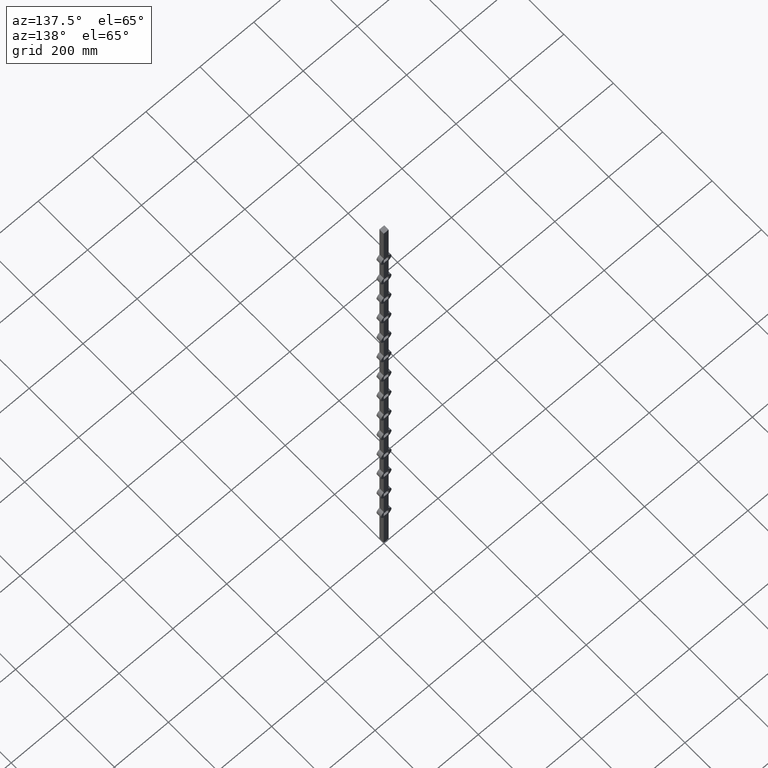
[diagram: clean part render]
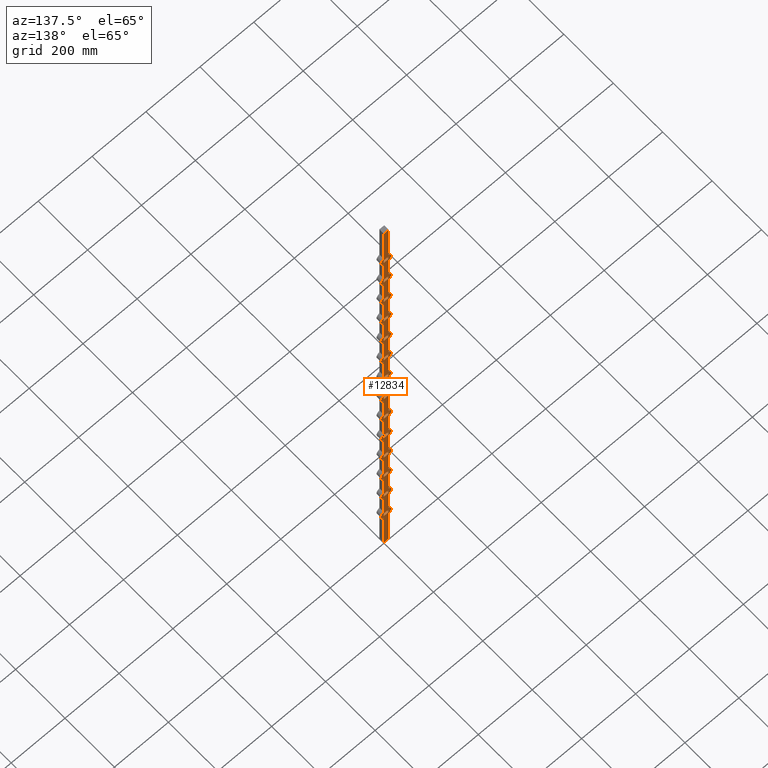
[diagram: same view with one face highlighted and labeled with its STEP entity id]
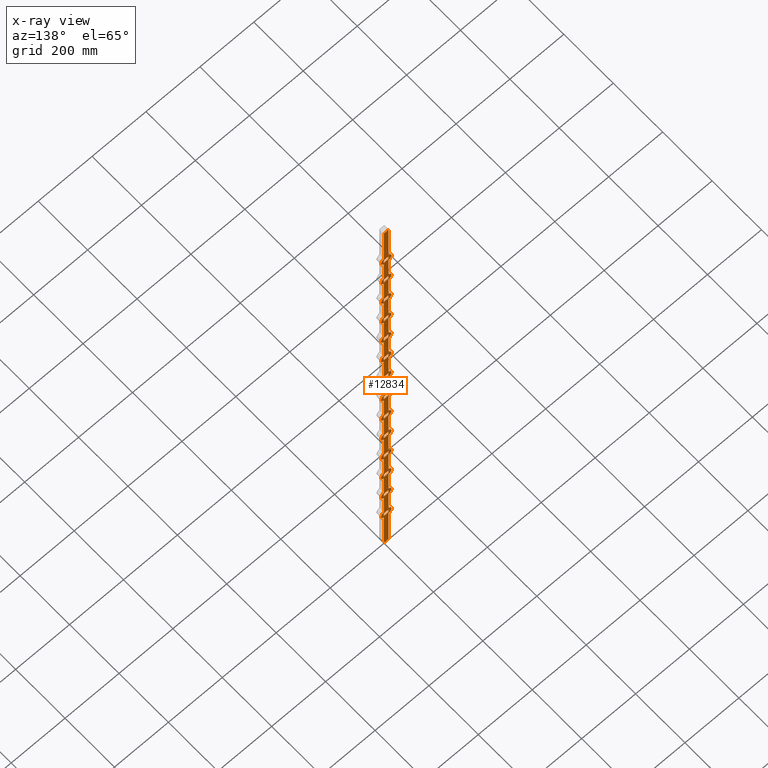
[diagram: x-ray of the same camera — body ghosted, the highlighted face saturated]
A machine part, auxiliary view. The second image highlights one B-rep face of the part: STEP entity #12834.
The next image is the same camera in x-ray: the body ghosted, the highlighted face saturated — about 0% of this face is hidden behind the body in this view.
In plain terms, the highlighted planar face has unit normal (0, -1, 0).
Its self-contained STEP definition (entity closure, byte-faithful):
#19 = LINE ( 'NONE', #2723, #2537 ) ;
#55 = DIRECTION ( 'NONE',  ( -1.000000000000000000, -0.000000000000000000, -0.000000000000000000 ) ) ;
#74 = LINE ( 'NONE', #4119, #10960 ) ;
#76 = CARTESIAN_POINT ( 'NONE',  ( -9.000000000000010658, 9.000000000000000000, -576.0000000000002274 ) ) ;
#131 = EDGE_CURVE ( 'NONE', #8751, #3801, #2846, .T. ) ;
#133 = DIRECTION ( 'NONE',  ( 9.637352644315585382E-17, 0.000000000000000000, 1.000000000000000000 ) ) ;
#135 = VECTOR ( 'NONE', #10785, 1000.000000000000000 ) ;
#139 = LINE ( 'NONE', #2048, #470 ) ;
#151 = EDGE_CURVE ( 'NONE', #520, #11135, #1516, .T. ) ;
#161 = EDGE_CURVE ( 'NONE', #1568, #675, #19, .T. ) ;
#168 = VERTEX_POINT ( 'NONE', #12189 ) ;
#170 = ORIENTED_EDGE ( 'NONE', *, *, #12329, .T. ) ;
#178 = LINE ( 'NONE', #11394, #5617 ) ;
#186 = CARTESIAN_POINT ( 'NONE',  ( -9.000000000000008882, 9.000000000000000000, 828.0000000000000000 ) ) ;
#204 = AXIS2_PLACEMENT_3D ( 'NONE', #4749, #12133, #9047 ) ;
#232 = VERTEX_POINT ( 'NONE', #12377 ) ;
#234 = DIRECTION ( 'NONE',  ( 0.000000000000000000, 0.000000000000000000, 1.000000000000000000 ) ) ;
#245 = CARTESIAN_POINT ( 'NONE',  ( 8.999999999999996447, 9.000000000000000000, 1000.000000000000000 ) ) ;
#305 = DIRECTION ( 'NONE',  ( -0.000000000000000000, -0.000000000000000000, -1.000000000000000000 ) ) ;
#310 = DIRECTION ( 'NONE',  ( 9.637352644315585382E-17, 0.000000000000000000, 1.000000000000000000 ) ) ;
#314 = EDGE_CURVE ( 'NONE', #168, #11352, #11075, .T. ) ;
#330 = DIRECTION ( 'NONE',  ( 1.000000000000000000, 0.000000000000000000, 0.000000000000000000 ) ) ;
#339 = EDGE_CURVE ( 'NONE', #12792, #501, #8280, .T. ) ;
#349 = FACE_BOUND ( 'NONE', #13633, .T. ) ;
#379 = VECTOR ( 'NONE', #2326, 1000.000000000000000 ) ;
#390 = VERTEX_POINT ( 'NONE', #11330 ) ;
#394 = DIRECTION ( 'NONE',  ( -1.000000000000000000, -0.000000000000000000, -0.000000000000000000 ) ) ;
#400 = VERTEX_POINT ( 'NONE', #9387 ) ;
#405 = VECTOR ( 'NONE', #7887, 1000.000000000000000 ) ;
#419 = VERTEX_POINT ( 'NONE', #11663 ) ;
#442 = CARTESIAN_POINT ( 'NONE',  ( -9.000000000000001776, 9.000000000000000000, 1000.000000000000000 ) ) ;
#465 = CARTESIAN_POINT ( 'NONE',  ( -9.000000000000010658, 9.000000000000000000, 809.9999999999998863 ) ) ;
#470 = VECTOR ( 'NONE', #6373, 1000.000000000000000 ) ;
#487 = EDGE_CURVE ( 'NONE', #7004, #12465, #672, .T. ) ;
#501 = VERTEX_POINT ( 'NONE', #1235 ) ;
#506 = FACE_BOUND ( 'NONE', #8798, .T. ) ;
#512 = CARTESIAN_POINT ( 'NONE',  ( 9.000000000000001776, 9.000000000000000000, 431.9999999999999432 ) ) ;
#518 = DIRECTION ( 'NONE',  ( 0.000000000000000000, 1.000000000000000000, 0.000000000000000000 ) ) ;
#520 = VERTEX_POINT ( 'NONE', #2161 ) ;
#546 = ORIENTED_EDGE ( 'NONE', *, *, #11422, .F. ) ;
#551 = EDGE_CURVE ( 'NONE', #7287, #7340, #6103, .T. ) ;
#553 = LINE ( 'NONE', #11947, #11623 ) ;
#592 = CARTESIAN_POINT ( 'NONE',  ( -9.000000000000001776, 9.000000000000000000, 1000.000000000000000 ) ) ;
#604 = ORIENTED_EDGE ( 'NONE', *, *, #1407, .F. ) ;
#633 = VERTEX_POINT ( 'NONE', #8969 ) ;
#642 = CARTESIAN_POINT ( 'NONE',  ( 0.000000000000000000, 9.000000000000000000, -63.00000000000005684 ) ) ;
#671 = EDGE_CURVE ( 'NONE', #2965, #11352, #12599, .T. ) ;
#672 = CIRCLE ( 'NONE', #4513, 19.49999999999996092 ) ;
#675 = VERTEX_POINT ( 'NONE', #2705 ) ;
#692 = CARTESIAN_POINT ( 'NONE',  ( 8.999999999999996447, 9.000000000000000000, 1000.000000000000000 ) ) ;
#693 = EDGE_CURVE ( 'NONE', #11833, #2264, #3969, .T. ) ;
#701 = CIRCLE ( 'NONE', #9040, 19.49999999999996092 ) ;
#715 = VECTOR ( 'NONE', #12418, 1000.000000000000000 ) ;
#735 = CARTESIAN_POINT ( 'NONE',  ( -9.000000000000008882, 9.000000000000000000, -305.9999999999999432 ) ) ;
#755 = CARTESIAN_POINT ( 'NONE',  ( 8.999999999999996447, 9.000000000000000000, 549.7011561079937110 ) ) ;
#769 = DIRECTION ( 'NONE',  ( 9.637352644315585382E-17, 0.000000000000000000, 1.000000000000000000 ) ) ;
#778 = VECTOR ( 'NONE', #305, 1000.000000000000000 ) ;
#791 = DIRECTION ( 'NONE',  ( -1.000000000000000000, -0.000000000000000000, -0.000000000000000000 ) ) ;
#857 = ORIENTED_EDGE ( 'NONE', *, *, #13218, .F. ) ;
#871 = ORIENTED_EDGE ( 'NONE', *, *, #3280, .T. ) ;
#876 = PLANE ( 'NONE',  #6489 ) ;
#891 = CIRCLE ( 'NONE', #5113, 19.49999999999996092 ) ;
#892 = CARTESIAN_POINT ( 'NONE',  ( -9.000000000000010658, 9.000000000000000000, -198.0000000000000568 ) ) ;
#936 = EDGE_CURVE ( 'NONE', #675, #2963, #178, .T. ) ;
#1001 = FACE_BOUND ( 'NONE', #8258, .T. ) ;
#1008 = CARTESIAN_POINT ( 'NONE',  ( 8.999999999999996447, 9.000000000000000000, -297.7011561079937678 ) ) ;
#1012 = CARTESIAN_POINT ( 'NONE',  ( 0.000000000000000000, 9.000000000000000000, 693.0000000000000000 ) ) ;
#1023 = CIRCLE ( 'NONE', #204, 19.50000000000001776 ) ;
#1024 = CARTESIAN_POINT ( 'NONE',  ( -9.000000000000000000, 9.000000000000000000, 710.2988438920061753 ) ) ;
#1035 = EDGE_CURVE ( 'NONE', #3243, #3116, #2812, .T. ) ;
#1049 = AXIS2_PLACEMENT_3D ( 'NONE', #3219, #10382, #6192 ) ;
#1058 = ORIENTED_EDGE ( 'NONE', *, *, #8743, .F. ) ;
#1063 = VECTOR ( 'NONE', #2090, 1000.000000000000000 ) ;
#1067 = VECTOR ( 'NONE', #9337, 1000.000000000000000 ) ;
#1072 = AXIS2_PLACEMENT_3D ( 'NONE', #13715, #2108, #6195 ) ;
#1089 = DIRECTION ( 'NONE',  ( -1.927470528863117076E-16, -0.000000000000000000, -1.000000000000000000 ) ) ;
#1102 = VERTEX_POINT ( 'NONE', #2445 ) ;
#1109 = EDGE_CURVE ( 'NONE', #1266, #6839, #10400, .T. ) ;
#1113 = CARTESIAN_POINT ( 'NONE',  ( 0.000000000000000000, 9.000000000000000000, 440.9999999999999432 ) ) ;
#1124 = CARTESIAN_POINT ( 'NONE',  ( -9.000000000000000000, 9.000000000000000000, 675.7011561079937110 ) ) ;
#1142 = VECTOR ( 'NONE', #10456, 1000.000000000000000 ) ;
#1149 = EDGE_CURVE ( 'NONE', #5352, #3243, #5111, .T. ) ;
#1160 = LINE ( 'NONE', #4285, #6273 ) ;
#1167 = ORIENTED_EDGE ( 'NONE', *, *, #3370, .T. ) ;
#1175 = AXIS2_PLACEMENT_3D ( 'NONE', #11302, #13609, #5061 ) ;
#1177 = CIRCLE ( 'NONE', #1284, 19.50000000000001776 ) ;
#1185 = FACE_BOUND ( 'NONE', #9962, .T. ) ;
#1235 = CARTESIAN_POINT ( 'NONE',  ( 9.000000000000007105, 9.000000000000000000, -54.00000000000004974 ) ) ;
#1258 = DIRECTION ( 'NONE',  ( 0.000000000000000000, 0.000000000000000000, 1.000000000000000000 ) ) ;
#1261 = CARTESIAN_POINT ( 'NONE',  ( -9.000000000000000000, 9.000000000000000000, -710.2988438920062890 ) ) ;
#1266 = VERTEX_POINT ( 'NONE', #5228 ) ;
#1276 = LINE ( 'NONE', #12982, #2101 ) ;
#1284 = AXIS2_PLACEMENT_3D ( 'NONE', #1591, #6772, #2549 ) ;
#1298 = CARTESIAN_POINT ( 'NONE',  ( 0.000000000000000000, 9.000000000000000000, -567.0000000000002274 ) ) ;
#1317 = LINE ( 'NONE', #1779, #6072 ) ;
#1339 = VECTOR ( 'NONE', #3595, 1000.000000000000000 ) ;
#1346 = DIRECTION ( 'NONE',  ( 0.000000000000000000, 0.000000000000000000, 1.000000000000000000 ) ) ;
#1351 = VECTOR ( 'NONE', #10424, 1000.000000000000000 ) ;
#1357 = VERTEX_POINT ( 'NONE', #11654 ) ;
#1364 = DIRECTION ( 'NONE',  ( 0.000000000000000000, 0.000000000000000000, 1.000000000000000000 ) ) ;
#1366 = VERTEX_POINT ( 'NONE', #9536 ) ;
#1373 = VERTEX_POINT ( 'NONE', #6532 ) ;
#1391 = CARTESIAN_POINT ( 'NONE',  ( -9.000000000000010658, 9.000000000000000000, 179.9999999999999432 ) ) ;
#1407 = EDGE_CURVE ( 'NONE', #7989, #7147, #2349, .T. ) ;
#1409 = VERTEX_POINT ( 'NONE', #2260 ) ;
#1410 = DIRECTION ( 'NONE',  ( 0.000000000000000000, 0.000000000000000000, 1.000000000000000000 ) ) ;
#1429 = CIRCLE ( 'NONE', #11687, 19.50000000000001776 ) ;
#1433 = ORIENTED_EDGE ( 'NONE', *, *, #8968, .F. ) ;
#1436 = EDGE_CURVE ( 'NONE', #3979, #3076, #1812, .T. ) ;
#1453 = CARTESIAN_POINT ( 'NONE',  ( -9.000000000000008882, 9.000000000000000000, -180.0000000000000568 ) ) ;
#1461 = DIRECTION ( 'NONE',  ( 0.000000000000000000, 1.000000000000000000, 0.000000000000000000 ) ) ;
#1467 = LINE ( 'NONE', #2605, #4436 ) ;
#1476 = DIRECTION ( 'NONE',  ( -1.927470528863117076E-16, -0.000000000000000000, -1.000000000000000000 ) ) ;
#1480 = VECTOR ( 'NONE', #12724, 1000.000000000000000 ) ;
#1489 = VECTOR ( 'NONE', #1794, 1000.000000000000000 ) ;
#1513 = VECTOR ( 'NONE', #4981, 1000.000000000000000 ) ;
#1516 = CIRCLE ( 'NONE', #12574, 19.49999999999996092 ) ;
#1520 = DIRECTION ( 'NONE',  ( -0.000000000000000000, -0.000000000000000000, -1.000000000000000000 ) ) ;
#1528 = ORIENTED_EDGE ( 'NONE', *, *, #13725, .T. ) ;
#1568 = VERTEX_POINT ( 'NONE', #1391 ) ;
#1587 = EDGE_CURVE ( 'NONE', #12356, #12438, #13188, .T. ) ;
#1591 = CARTESIAN_POINT ( 'NONE',  ( 0.000000000000000000, 9.000000000000000000, 440.9999999999999432 ) ) ;
#1607 = CARTESIAN_POINT ( 'NONE',  ( 9.000000000000001776, 9.000000000000000000, 305.9999999999999432 ) ) ;
#1669 = CARTESIAN_POINT ( 'NONE',  ( 9.000000000000001776, 9.000000000000000000, 179.9999999999999432 ) ) ;
#1671 = VECTOR ( 'NONE', #11035, 1000.000000000000000 ) ;
#1691 = VERTEX_POINT ( 'NONE', #6474 ) ;
#1742 = VECTOR ( 'NONE', #2335, 1000.000000000000000 ) ;
#1764 = DIRECTION ( 'NONE',  ( -0.000000000000000000, -0.000000000000000000, -1.000000000000000000 ) ) ;
#1778 = ORIENTED_EDGE ( 'NONE', *, *, #13512, .F. ) ;
#1779 = CARTESIAN_POINT ( 'NONE',  ( 9.000000000000005329, 9.000000000000000000, -323.9999999999999432 ) ) ;
#1784 = EDGE_LOOP ( 'NONE', ( #6370, #9974, #13154, #4954 ) ) ;
#1794 = DIRECTION ( 'NONE',  ( -0.000000000000000000, -0.000000000000000000, -1.000000000000000000 ) ) ;
#1812 = CIRCLE ( 'NONE', #7441, 19.50000000000000355 ) ;
#1823 = VECTOR ( 'NONE', #10180, 1000.000000000000000 ) ;
#1825 = CIRCLE ( 'NONE', #2692, 19.50000000000001776 ) ;
#1878 = CARTESIAN_POINT ( 'NONE',  ( -9.000000000000001776, 9.000000000000000000, 1000.000000000000000 ) ) ;
#1904 = DIRECTION ( 'NONE',  ( 0.000000000000000000, 1.000000000000000000, 0.000000000000000000 ) ) ;
#1933 = DIRECTION ( 'NONE',  ( 0.000000000000000000, 1.000000000000000000, 0.000000000000000000 ) ) ;
#1941 = LINE ( 'NONE', #2906, #2299 ) ;
#1944 = CARTESIAN_POINT ( 'NONE',  ( 8.999999999999996447, 9.000000000000000000, -45.70115610799385308 ) ) ;
#1971 = CIRCLE ( 'NONE', #6858, 19.49999999999996092 ) ;
#1987 = EDGE_LOOP ( 'NONE', ( #11208, #7977, #4879, #11382 ) ) ;
#2000 = CARTESIAN_POINT ( 'NONE',  ( 9.000000000000001776, 9.000000000000000000, 809.9999999999998863 ) ) ;
#2004 = CARTESIAN_POINT ( 'NONE',  ( 0.000000000000000000, 9.000000000000000000, 62.99999999999994316 ) ) ;
#2040 = ORIENTED_EDGE ( 'NONE', *, *, #2542, .T. ) ;
#2048 = CARTESIAN_POINT ( 'NONE',  ( -9.000000000000010658, 9.000000000000000000, 683.9999999999998863 ) ) ;
#2071 = ORIENTED_EDGE ( 'NONE', *, *, #4234, .F. ) ;
#2076 = LINE ( 'NONE', #9454, #10823 ) ;
#2090 = DIRECTION ( 'NONE',  ( -1.927470528863117076E-16, -0.000000000000000000, -1.000000000000000000 ) ) ;
#2091 = CARTESIAN_POINT ( 'NONE',  ( -9.000000000000010658, 9.000000000000000000, -828.0000000000000000 ) ) ;
#2101 = VECTOR ( 'NONE', #5446, 1000.000000000000000 ) ;
#2108 = DIRECTION ( 'NONE',  ( 0.000000000000000000, 1.000000000000000000, 0.000000000000000000 ) ) ;
#2110 = ORIENTED_EDGE ( 'NONE', *, *, #9592, .F. ) ;
#2126 = VECTOR ( 'NONE', #9728, 1000.000000000000000 ) ;
#2131 = DIRECTION ( 'NONE',  ( -0.000000000000000000, -0.000000000000000000, -1.000000000000000000 ) ) ;
#2137 = LINE ( 'NONE', #6767, #778 ) ;
#2138 = CARTESIAN_POINT ( 'NONE',  ( 9.000000000000001776, 9.000000000000000000, -827.9999999999998863 ) ) ;
#2146 = CARTESIAN_POINT ( 'NONE',  ( -9.000000000000008882, 9.000000000000000000, 71.99999999999995737 ) ) ;
#2157 = ORIENTED_EDGE ( 'NONE', *, *, #9786, .F. ) ;
#2161 = CARTESIAN_POINT ( 'NONE',  ( 8.999999999999996447, 9.000000000000000000, -801.7011561079937110 ) ) ;
#2171 = ORIENTED_EDGE ( 'NONE', *, *, #7603, .T. ) ;
#2186 = CARTESIAN_POINT ( 'NONE',  ( 0.000000000000000000, 9.000000000000000000, 567.0000000000000000 ) ) ;
#2212 = LINE ( 'NONE', #9434, #3022 ) ;
#2214 = DIRECTION ( 'NONE',  ( -1.927470528863117076E-16, -0.000000000000000000, -1.000000000000000000 ) ) ;
#2230 = EDGE_CURVE ( 'NONE', #4138, #13706, #1429, .T. ) ;
#2243 = CARTESIAN_POINT ( 'NONE',  ( -9.000000000000001776, 9.000000000000000000, 801.7011561079937110 ) ) ;
#2260 = CARTESIAN_POINT ( 'NONE',  ( -9.000000000000000000, 9.000000000000000000, -801.7011561079937110 ) ) ;
#2264 = VERTEX_POINT ( 'NONE', #2683 ) ;
#2299 = VECTOR ( 'NONE', #791, 1000.000000000000000 ) ;
#2311 = CIRCLE ( 'NONE', #10300, 19.50000000000001776 ) ;
#2315 = CARTESIAN_POINT ( 'NONE',  ( -9.000000000000001776, 9.000000000000000000, 1000.000000000000000 ) ) ;
#2317 = VECTOR ( 'NONE', #5044, 1000.000000000000000 ) ;
#2326 = DIRECTION ( 'NONE',  ( -1.000000000000000000, -0.000000000000000000, -0.000000000000000000 ) ) ;
#2335 = DIRECTION ( 'NONE',  ( -1.000000000000000000, -0.000000000000000000, -0.000000000000000000 ) ) ;
#2344 = CARTESIAN_POINT ( 'NONE',  ( 9.000000000000005329, 9.000000000000000000, 683.9999999999998863 ) ) ;
#2345 = LINE ( 'NONE', #10482, #10257 ) ;
#2349 = LINE ( 'NONE', #2344, #3498 ) ;
#2351 = VERTEX_POINT ( 'NONE', #3927 ) ;
#2357 = FACE_BOUND ( 'NONE', #6252, .T. ) ;
#2363 = EDGE_CURVE ( 'NONE', #6037, #9888, #13178, .T. ) ;
#2376 = VECTOR ( 'NONE', #7787, 1000.000000000000000 ) ;
#2395 = VERTEX_POINT ( 'NONE', #11351 ) ;
#2400 = EDGE_CURVE ( 'NONE', #633, #3662, #3587, .T. ) ;
#2405 = LINE ( 'NONE', #2413, #7331 ) ;
#2409 = CIRCLE ( 'NONE', #1175, 19.49999999999996092 ) ;
#2413 = CARTESIAN_POINT ( 'NONE',  ( 9.000000000000005329, 9.000000000000000000, 305.9999999999999432 ) ) ;
#2440 = CARTESIAN_POINT ( 'NONE',  ( 9.000000000000007105, 9.000000000000000000, -180.0000000000000568 ) ) ;
#2445 = CARTESIAN_POINT ( 'NONE',  ( -9.000000000000001776, 9.000000000000000000, 1000.000000000000000 ) ) ;
#2454 = AXIS2_PLACEMENT_3D ( 'NONE', #10833, #1461, #4508 ) ;
#2457 = DIRECTION ( 'NONE',  ( 0.000000000000000000, 0.000000000000000000, 1.000000000000000000 ) ) ;
#2466 = CARTESIAN_POINT ( 'NONE',  ( 8.999999999999996447, 9.000000000000000000, 584.2988438920061753 ) ) ;
#2482 = CIRCLE ( 'NONE', #12084, 19.50000000000001776 ) ;
#2488 = EDGE_CURVE ( 'NONE', #4505, #7338, #891, .T. ) ;
#2531 = ORIENTED_EDGE ( 'NONE', *, *, #10336, .F. ) ;
#2536 = DIRECTION ( 'NONE',  ( 9.637352644315585382E-17, 0.000000000000000000, 1.000000000000000000 ) ) ;
#2537 = VECTOR ( 'NONE', #3872, 1000.000000000000000 ) ;
#2542 = EDGE_CURVE ( 'NONE', #5365, #7098, #9993, .T. ) ;
#2546 = ORIENTED_EDGE ( 'NONE', *, *, #10331, .F. ) ;
#2549 = DIRECTION ( 'NONE',  ( 0.000000000000000000, 0.000000000000000000, 1.000000000000000000 ) ) ;
#2563 = LINE ( 'NONE', #6387, #12669 ) ;
#2575 = VERTEX_POINT ( 'NONE', #12532 ) ;
#2577 = LINE ( 'NONE', #2664, #405 ) ;
#2589 = VECTOR ( 'NONE', #8220, 1000.000000000000000 ) ;
#2591 = EDGE_CURVE ( 'NONE', #3692, #10263, #12317, .T. ) ;
#2598 = EDGE_CURVE ( 'NONE', #5660, #11909, #2076, .T. ) ;
#2605 = CARTESIAN_POINT ( 'NONE',  ( 9.000000000000005329, 9.000000000000000000, 53.99999999999993605 ) ) ;
#2639 = VERTEX_POINT ( 'NONE', #7245 ) ;
#2641 = ORIENTED_EDGE ( 'NONE', *, *, #3306, .F. ) ;
#2664 = CARTESIAN_POINT ( 'NONE',  ( 9.000000000000005329, 9.000000000000000000, -72.00000000000005684 ) ) ;
#2667 = FACE_BOUND ( 'NONE', #13721, .T. ) ;
#2678 = CARTESIAN_POINT ( 'NONE',  ( -9.000000000000000000, 9.000000000000000000, -584.2988438920064027 ) ) ;
#2683 = CARTESIAN_POINT ( 'NONE',  ( 9.000000000000001776, 9.000000000000000000, -197.9999999999999432 ) ) ;
#2692 = AXIS2_PLACEMENT_3D ( 'NONE', #8799, #5561, #1364 ) ;
#2705 = CARTESIAN_POINT ( 'NONE',  ( -9.000000000000008882, 9.000000000000000000, 197.9999999999999432 ) ) ;
#2708 = CARTESIAN_POINT ( 'NONE',  ( 9.000000000000007105, 9.000000000000000000, 702.0000000000000000 ) ) ;
#2718 = LINE ( 'NONE', #8865, #3866 ) ;
#2723 = CARTESIAN_POINT ( 'NONE',  ( -9.000000000000010658, 9.000000000000000000, 179.9999999999999432 ) ) ;
#2746 = EDGE_CURVE ( 'NONE', #10263, #390, #5010, .T. ) ;
#2755 = LINE ( 'NONE', #11933, #10841 ) ;
#2759 = ORIENTED_EDGE ( 'NONE', *, *, #13117, .F. ) ;
#2772 = CARTESIAN_POINT ( 'NONE',  ( -9.000000000000001776, 9.000000000000000000, 1000.000000000000000 ) ) ;
#2810 = CIRCLE ( 'NONE', #4785, 19.50000000000001776 ) ;
#2812 = LINE ( 'NONE', #5506, #1339 ) ;
#2825 = VECTOR ( 'NONE', #13116, 1000.000000000000000 ) ;
#2835 = DIRECTION ( 'NONE',  ( 0.000000000000000000, -0.000000000000000000, -1.000000000000000000 ) ) ;
#2836 = CARTESIAN_POINT ( 'NONE',  ( -9.000000000000000000, 9.000000000000000000, -549.7011561079939383 ) ) ;
#2839 = EDGE_CURVE ( 'NONE', #3533, #11409, #8346, .T. ) ;
#2846 = LINE ( 'NONE', #12336, #6303 ) ;
#2858 = VERTEX_POINT ( 'NONE', #2243 ) ;
#2859 = LINE ( 'NONE', #10418, #10945 ) ;
#2862 = DIRECTION ( 'NONE',  ( 1.000000000000000000, 0.000000000000000000, 0.000000000000000000 ) ) ;
#2902 = ORIENTED_EDGE ( 'NONE', *, *, #4241, .T. ) ;
#2905 = VECTOR ( 'NONE', #4882, 1000.000000000000000 ) ;
#2906 = CARTESIAN_POINT ( 'NONE',  ( -9.000000000000010658, 9.000000000000000000, 305.9999999999999432 ) ) ;
#2913 = CARTESIAN_POINT ( 'NONE',  ( 8.999999999999996447, 9.000000000000000000, -80.29884389200626060 ) ) ;
#2925 = CARTESIAN_POINT ( 'NONE',  ( -9.000000000000010658, 9.000000000000000000, 557.9999999999998863 ) ) ;
#2928 = CARTESIAN_POINT ( 'NONE',  ( -9.000000000000010658, 9.000000000000000000, -702.0000000000001137 ) ) ;
#2945 = VECTOR ( 'NONE', #5210, 1000.000000000000000 ) ;
#2947 = VECTOR ( 'NONE', #1520, 1000.000000000000000 ) ;
#2963 = VERTEX_POINT ( 'NONE', #10044 ) ;
#2965 = VERTEX_POINT ( 'NONE', #2678 ) ;
#2979 = ORIENTED_EDGE ( 'NONE', *, *, #4247, .T. ) ;
#3022 = VECTOR ( 'NONE', #8473, 1000.000000000000000 ) ;
#3053 = VECTOR ( 'NONE', #3639, 1000.000000000000000 ) ;
#3058 = CARTESIAN_POINT ( 'NONE',  ( 8.999999999999996447, 9.000000000000000000, 1000.000000000000000 ) ) ;
#3076 = VERTEX_POINT ( 'NONE', #2913 ) ;
#3087 = CARTESIAN_POINT ( 'NONE',  ( 9.000000000000007105, 9.000000000000000000, 828.0000000000000000 ) ) ;
#3116 = VERTEX_POINT ( 'NONE', #4053 ) ;
#3131 = LINE ( 'NONE', #13727, #2317 ) ;
#3170 = CARTESIAN_POINT ( 'NONE',  ( -9.000000000000010658, 9.000000000000000000, -323.9999999999999432 ) ) ;
#3179 = ORIENTED_EDGE ( 'NONE', *, *, #5379, .F. ) ;
#3197 = CIRCLE ( 'NONE', #6214, 19.49999999999996092 ) ;
#3208 = VERTEX_POINT ( 'NONE', #4273 ) ;
#3218 = CIRCLE ( 'NONE', #5914, 19.50000000000000355 ) ;
#3219 = CARTESIAN_POINT ( 'NONE',  ( 0.000000000000000000, 9.000000000000000000, 819.0000000000000000 ) ) ;
#3221 = VECTOR ( 'NONE', #6626, 1000.000000000000000 ) ;
#3225 = CARTESIAN_POINT ( 'NONE',  ( 9.000000000000007105, 9.000000000000000000, 576.0000000000000000 ) ) ;
#3236 = CARTESIAN_POINT ( 'NONE',  ( 9.000000000000007105, 9.000000000000000000, -305.9999999999999432 ) ) ;
#3237 = EDGE_CURVE ( 'NONE', #8822, #400, #11807, .T. ) ;
#3243 = VERTEX_POINT ( 'NONE', #12713 ) ;
#3273 = DIRECTION ( 'NONE',  ( 0.000000000000000000, 1.000000000000000000, 0.000000000000000000 ) ) ;
#3280 = EDGE_CURVE ( 'NONE', #8482, #3783, #3218, .T. ) ;
#3306 = EDGE_CURVE ( 'NONE', #2858, #11752, #12830, .T. ) ;
#3350 = LINE ( 'NONE', #10246, #1513 ) ;
#3355 = VECTOR ( 'NONE', #2131, 1000.000000000000000 ) ;
#3356 = EDGE_CURVE ( 'NONE', #3662, #8600, #2405, .T. ) ;
#3370 = EDGE_CURVE ( 'NONE', #3843, #3979, #2718, .T. ) ;
#3382 = ORIENTED_EDGE ( 'NONE', *, *, #12125, .F. ) ;
#3388 = EDGE_CURVE ( 'NONE', #7147, #3886, #8509, .T. ) ;
#3399 = CARTESIAN_POINT ( 'NONE',  ( -9.000000000000010658, 9.000000000000000000, 809.9999999999998863 ) ) ;
#3415 = DIRECTION ( 'NONE',  ( -1.000000000000000000, -0.000000000000000000, -0.000000000000000000 ) ) ;
#3417 = CARTESIAN_POINT ( 'NONE',  ( -9.000000000000010658, 9.000000000000000000, 53.99999999999993605 ) ) ;
#3428 = CARTESIAN_POINT ( 'NONE',  ( -9.000000000000010658, 9.000000000000000000, 809.9999999999998863 ) ) ;
#3459 = CARTESIAN_POINT ( 'NONE',  ( 8.999999999999996447, 9.000000000000000000, 423.7011561079937678 ) ) ;
#3465 = DIRECTION ( 'NONE',  ( 0.000000000000000000, 1.000000000000000000, 0.000000000000000000 ) ) ;
#3498 = VECTOR ( 'NONE', #5454, 1000.000000000000000 ) ;
#3515 = AXIS2_PLACEMENT_3D ( 'NONE', #7018, #5853, #12537 ) ;
#3533 = VERTEX_POINT ( 'NONE', #12181 ) ;
#3537 = VERTEX_POINT ( 'NONE', #1669 ) ;
#3587 = LINE ( 'NONE', #7109, #8522 ) ;
#3591 = DIRECTION ( 'NONE',  ( -1.000000000000000000, -0.000000000000000000, -0.000000000000000000 ) ) ;
#3593 = VERTEX_POINT ( 'NONE', #7219 ) ;
#3595 = DIRECTION ( 'NONE',  ( 9.637352644315585382E-17, 0.000000000000000000, 1.000000000000000000 ) ) ;
#3637 = EDGE_CURVE ( 'NONE', #419, #12356, #5694, .T. ) ;
#3639 = DIRECTION ( 'NONE',  ( -0.000000000000000000, -0.000000000000000000, -1.000000000000000000 ) ) ;
#3662 = VERTEX_POINT ( 'NONE', #4036 ) ;
#3682 = LINE ( 'NONE', #9661, #379 ) ;
#3692 = VERTEX_POINT ( 'NONE', #3225 ) ;
#3707 = ORIENTED_EDGE ( 'NONE', *, *, #4506, .F. ) ;
#3715 = EDGE_CURVE ( 'NONE', #3537, #1568, #2563, .T. ) ;
#3721 = VERTEX_POINT ( 'NONE', #7310 ) ;
#3746 = VERTEX_POINT ( 'NONE', #1124 ) ;
#3778 = LINE ( 'NONE', #8943, #10874 ) ;
#3783 = VERTEX_POINT ( 'NONE', #4079 ) ;
#3789 = EDGE_CURVE ( 'NONE', #1357, #12078, #74, .T. ) ;
#3791 = CARTESIAN_POINT ( 'NONE',  ( 8.999999999999996447, 9.000000000000000000, -171.7011561079938531 ) ) ;
#3801 = VERTEX_POINT ( 'NONE', #11599 ) ;
#3803 = CARTESIAN_POINT ( 'NONE',  ( -9.000000000000008882, 9.000000000000000000, 71.99999999999995737 ) ) ;
#3843 = VERTEX_POINT ( 'NONE', #7407 ) ;
#3866 = VECTOR ( 'NONE', #11009, 1000.000000000000000 ) ;
#3872 = DIRECTION ( 'NONE',  ( 9.637352644315585382E-17, 0.000000000000000000, 1.000000000000000000 ) ) ;
#3886 = VERTEX_POINT ( 'NONE', #10337 ) ;
#3895 = CARTESIAN_POINT ( 'NONE',  ( -9.000000000000001776, 9.000000000000000000, 1000.000000000000000 ) ) ;
#3901 = DIRECTION ( 'NONE',  ( 0.000000000000000000, 1.000000000000000000, 0.000000000000000000 ) ) ;
#3927 = CARTESIAN_POINT ( 'NONE',  ( -9.000000000000000000, 9.000000000000000000, -297.7011561079937678 ) ) ;
#3969 = LINE ( 'NONE', #13126, #9092 ) ;
#3979 = VERTEX_POINT ( 'NONE', #1944 ) ;
#3999 = CARTESIAN_POINT ( 'NONE',  ( -9.000000000000008882, 9.000000000000000000, 702.0000000000000000 ) ) ;
#4022 = ORIENTED_EDGE ( 'NONE', *, *, #5268, .T. ) ;
#4036 = CARTESIAN_POINT ( 'NONE',  ( 9.000000000000007105, 9.000000000000000000, 323.9999999999999432 ) ) ;
#4049 = EDGE_CURVE ( 'NONE', #4942, #5534, #553, .T. ) ;
#4053 = CARTESIAN_POINT ( 'NONE',  ( -9.000000000000008882, 9.000000000000000000, 449.9999999999999432 ) ) ;
#4079 = CARTESIAN_POINT ( 'NONE',  ( -9.000000000000000000, 9.000000000000000000, 80.29884389200614692 ) ) ;
#4099 = EDGE_CURVE ( 'NONE', #10543, #11833, #7689, .T. ) ;
#4101 = LINE ( 'NONE', #7006, #8748 ) ;
#4108 = CARTESIAN_POINT ( 'NONE',  ( -9.000000000000001776, 9.000000000000000000, 1000.000000000000000 ) ) ;
#4109 = EDGE_CURVE ( 'NONE', #4174, #12792, #11117, .T. ) ;
#4119 = CARTESIAN_POINT ( 'NONE',  ( -9.000000000000008882, 9.000000000000000000, -809.9999999999998863 ) ) ;
#4131 = CIRCLE ( 'NONE', #5524, 19.49999999999996092 ) ;
#4138 = VERTEX_POINT ( 'NONE', #3791 ) ;
#4142 = ORIENTED_EDGE ( 'NONE', *, *, #161, .F. ) ;
#4157 = ORIENTED_EDGE ( 'NONE', *, *, #7957, .F. ) ;
#4174 = VERTEX_POINT ( 'NONE', #12539 ) ;
#4175 = CARTESIAN_POINT ( 'NONE',  ( 8.999999999999996447, 9.000000000000000000, -458.2988438920062322 ) ) ;
#4180 = ORIENTED_EDGE ( 'NONE', *, *, #10836, .F. ) ;
#4193 = LINE ( 'NONE', #11248, #4529 ) ;
#4219 = CARTESIAN_POINT ( 'NONE',  ( -9.000000000000000000, 9.000000000000000000, -836.2988438920061753 ) ) ;
#4220 = VECTOR ( 'NONE', #13752, 1000.000000000000000 ) ;
#4234 = EDGE_CURVE ( 'NONE', #390, #10651, #10122, .T. ) ;
#4241 = EDGE_CURVE ( 'NONE', #2858, #11097, #2409, .T. ) ;
#4242 = CARTESIAN_POINT ( 'NONE',  ( -9.000000000000008882, 9.000000000000000000, 576.0000000000000000 ) ) ;
#4247 = EDGE_CURVE ( 'NONE', #3076, #4138, #4193, .T. ) ;
#4265 = VECTOR ( 'NONE', #4373, 1000.000000000000000 ) ;
#4270 = CARTESIAN_POINT ( 'NONE',  ( -9.000000000000001776, 9.000000000000000000, 1000.000000000000000 ) ) ;
#4273 = CARTESIAN_POINT ( 'NONE',  ( -9.000000000000008882, 9.000000000000000000, 702.0000000000000000 ) ) ;
#4285 = CARTESIAN_POINT ( 'NONE',  ( -9.000000000000010658, 9.000000000000000000, -198.0000000000000568 ) ) ;
#4287 = DIRECTION ( 'NONE',  ( 0.000000000000000000, 1.000000000000000000, 0.000000000000000000 ) ) ;
#4302 = ORIENTED_EDGE ( 'NONE', *, *, #4109, .F. ) ;
#4306 = LINE ( 'NONE', #3417, #2825 ) ;
#4325 = ORIENTED_EDGE ( 'NONE', *, *, #2591, .F. ) ;
#4359 = ORIENTED_EDGE ( 'NONE', *, *, #5193, .F. ) ;
#4369 = CARTESIAN_POINT ( 'NONE',  ( 0.000000000000000000, 9.000000000000000000, 567.0000000000000000 ) ) ;
#4373 = DIRECTION ( 'NONE',  ( -0.000000000000000000, -0.000000000000000000, -1.000000000000000000 ) ) ;
#4379 = VERTEX_POINT ( 'NONE', #6272 ) ;
#4428 = VERTEX_POINT ( 'NONE', #11836 ) ;
#4436 = VECTOR ( 'NONE', #1476, 1000.000000000000000 ) ;
#4445 = LINE ( 'NONE', #12671, #6765 ) ;
#4450 = ORIENTED_EDGE ( 'NONE', *, *, #7525, .F. ) ;
#4451 = ORIENTED_EDGE ( 'NONE', *, *, #7624, .F. ) ;
#4472 = ORIENTED_EDGE ( 'NONE', *, *, #3715, .F. ) ;
#4482 = FACE_BOUND ( 'NONE', #7002, .T. ) ;
#4492 = CARTESIAN_POINT ( 'NONE',  ( -9.000000000000010658, 9.000000000000000000, 431.9999999999999432 ) ) ;
#4498 = CARTESIAN_POINT ( 'NONE',  ( -9.000000000000010658, 9.000000000000000000, -72.00000000000005684 ) ) ;
#4505 = VERTEX_POINT ( 'NONE', #1261 ) ;
#4506 = EDGE_CURVE ( 'NONE', #400, #4942, #8310, .T. ) ;
#4508 = DIRECTION ( 'NONE',  ( 0.000000000000000000, 0.000000000000000000, 1.000000000000000000 ) ) ;
#4510 = ORIENTED_EDGE ( 'NONE', *, *, #2488, .T. ) ;
#4513 = AXIS2_PLACEMENT_3D ( 'NONE', #4369, #11704, #12708 ) ;
#4529 = VECTOR ( 'NONE', #7243, 1000.000000000000000 ) ;
#4539 = LINE ( 'NONE', #2091, #5691 ) ;
#4561 = VERTEX_POINT ( 'NONE', #10667 ) ;
#4579 = DIRECTION ( 'NONE',  ( 0.000000000000000000, 0.000000000000000000, 1.000000000000000000 ) ) ;
#4598 = CARTESIAN_POINT ( 'NONE',  ( -9.000000000000000000, 9.000000000000000000, 458.2988438920061753 ) ) ;
#4651 = CARTESIAN_POINT ( 'NONE',  ( 8.999999999999996447, 9.000000000000000000, -1000.000000000000000 ) ) ;
#4653 = DIRECTION ( 'NONE',  ( -1.927470528863117076E-16, -0.000000000000000000, -1.000000000000000000 ) ) ;
#4654 = CARTESIAN_POINT ( 'NONE',  ( 8.999999999999996447, 9.000000000000000000, 1000.000000000000000 ) ) ;
#4664 = ORIENTED_EDGE ( 'NONE', *, *, #671, .T. ) ;
#4672 = ORIENTED_EDGE ( 'NONE', *, *, #2598, .T. ) ;
#4692 = VECTOR ( 'NONE', #7025, 1000.000000000000000 ) ;
#4727 = ORIENTED_EDGE ( 'NONE', *, *, #7351, .F. ) ;
#4742 = VERTEX_POINT ( 'NONE', #7144 ) ;
#4749 = CARTESIAN_POINT ( 'NONE',  ( 0.000000000000000000, 9.000000000000000000, -441.0000000000000568 ) ) ;
#4755 = DIRECTION ( 'NONE',  ( 0.000000000000000000, 0.000000000000000000, 1.000000000000000000 ) ) ;
#4756 = EDGE_LOOP ( 'NONE', ( #7544, #7131, #6847, #2531 ) ) ;
#4780 = ORIENTED_EDGE ( 'NONE', *, *, #2230, .T. ) ;
#4785 = AXIS2_PLACEMENT_3D ( 'NONE', #5057, #7099, #8122 ) ;
#4798 = DIRECTION ( 'NONE',  ( 0.000000000000000000, 1.000000000000000000, 0.000000000000000000 ) ) ;
#4818 = VERTEX_POINT ( 'NONE', #11715 ) ;
#4831 = CARTESIAN_POINT ( 'NONE',  ( 0.000000000000000000, 9.000000000000000000, -693.0000000000001137 ) ) ;
#4843 = VERTEX_POINT ( 'NONE', #6642 ) ;
#4859 = LINE ( 'NONE', #2146, #10654 ) ;
#4879 = ORIENTED_EDGE ( 'NONE', *, *, #11658, .F. ) ;
#4882 = DIRECTION ( 'NONE',  ( 1.000000000000000000, 0.000000000000000000, 0.000000000000000000 ) ) ;
#4899 = CARTESIAN_POINT ( 'NONE',  ( 0.000000000000000000, 9.000000000000000000, -819.0000000000000000 ) ) ;
#4931 = EDGE_CURVE ( 'NONE', #11473, #8323, #2212, .T. ) ;
#4942 = VERTEX_POINT ( 'NONE', #3087 ) ;
#4954 = ORIENTED_EDGE ( 'NONE', *, *, #10628, .F. ) ;
#4968 = CARTESIAN_POINT ( 'NONE',  ( 9.000000000000007105, 9.000000000000000000, -809.9999999999998863 ) ) ;
#4976 = ORIENTED_EDGE ( 'NONE', *, *, #11432, .T. ) ;
#4977 = CARTESIAN_POINT ( 'NONE',  ( 9.000000000000001776, 9.000000000000000000, 557.9999999999998863 ) ) ;
#4981 = DIRECTION ( 'NONE',  ( 1.000000000000000000, 0.000000000000000000, 0.000000000000000000 ) ) ;
#4986 = CARTESIAN_POINT ( 'NONE',  ( 8.999999999999996447, 9.000000000000000000, 1000.000000000000000 ) ) ;
#5010 = LINE ( 'NONE', #10487, #4692 ) ;
#5012 = CARTESIAN_POINT ( 'NONE',  ( -9.000000000000000000, 9.000000000000000000, -423.7011561079938815 ) ) ;
#5022 = DIRECTION ( 'NONE',  ( 0.000000000000000000, 0.000000000000000000, 1.000000000000000000 ) ) ;
#5025 = CARTESIAN_POINT ( 'NONE',  ( -9.000000000000010658, 9.000000000000000000, -576.0000000000002274 ) ) ;
#5035 = AXIS2_PLACEMENT_3D ( 'NONE', #1012, #13744, #9520 ) ;
#5044 = DIRECTION ( 'NONE',  ( -1.000000000000000000, -0.000000000000000000, -0.000000000000000000 ) ) ;
#5057 = CARTESIAN_POINT ( 'NONE',  ( 0.000000000000000000, 9.000000000000000000, -314.9999999999999432 ) ) ;
#5061 = DIRECTION ( 'NONE',  ( 0.000000000000000000, 0.000000000000000000, 1.000000000000000000 ) ) ;
#5090 = CARTESIAN_POINT ( 'NONE',  ( 9.000000000000007105, 9.000000000000000000, 71.99999999999995737 ) ) ;
#5091 = ORIENTED_EDGE ( 'NONE', *, *, #7127, .F. ) ;
#5111 = LINE ( 'NONE', #4492, #11916 ) ;
#5113 = AXIS2_PLACEMENT_3D ( 'NONE', #4831, #12240, #8303 ) ;
#5191 = DIRECTION ( 'NONE',  ( -0.000000000000000000, -0.000000000000000000, -1.000000000000000000 ) ) ;
#5193 = EDGE_CURVE ( 'NONE', #2575, #3721, #7967, .T. ) ;
#5210 = DIRECTION ( 'NONE',  ( -0.000000000000000000, -0.000000000000000000, -1.000000000000000000 ) ) ;
#5215 = EDGE_CURVE ( 'NONE', #5363, #9921, #6972, .T. ) ;
#5228 = CARTESIAN_POINT ( 'NONE',  ( 9.000000000000007105, 9.000000000000000000, -684.0000000000000000 ) ) ;
#5238 = CARTESIAN_POINT ( 'NONE',  ( -9.000000000000008882, 9.000000000000000000, -54.00000000000004974 ) ) ;
#5268 = EDGE_CURVE ( 'NONE', #168, #5992, #1023, .T. ) ;
#5328 = CARTESIAN_POINT ( 'NONE',  ( 9.000000000000005329, 9.000000000000000000, -576.0000000000002274 ) ) ;
#5352 = VERTEX_POINT ( 'NONE', #512 ) ;
#5363 = VERTEX_POINT ( 'NONE', #6896 ) ;
#5365 = VERTEX_POINT ( 'NONE', #13243 ) ;
#5379 = EDGE_CURVE ( 'NONE', #3746, #4561, #12270, .T. ) ;
#5439 = VERTEX_POINT ( 'NONE', #11444 ) ;
#5446 = DIRECTION ( 'NONE',  ( -0.000000000000000000, -0.000000000000000000, -1.000000000000000000 ) ) ;
#5451 = CARTESIAN_POINT ( 'NONE',  ( -9.000000000000000000, 9.000000000000000000, 45.70115610799374650 ) ) ;
#5454 = DIRECTION ( 'NONE',  ( -1.927470528863117076E-16, -0.000000000000000000, -1.000000000000000000 ) ) ;
#5470 = LINE ( 'NONE', #2928, #1351 ) ;
#5506 = CARTESIAN_POINT ( 'NONE',  ( -9.000000000000010658, 9.000000000000000000, 431.9999999999999432 ) ) ;
#5515 = VECTOR ( 'NONE', #6142, 1000.000000000000000 ) ;
#5524 = AXIS2_PLACEMENT_3D ( 'NONE', #1298, #11830, #234 ) ;
#5529 = DIRECTION ( 'NONE',  ( -1.000000000000000000, -0.000000000000000000, -0.000000000000000000 ) ) ;
#5534 = VERTEX_POINT ( 'NONE', #2000 ) ;
#5560 = VERTEX_POINT ( 'NONE', #6331 ) ;
#5561 = DIRECTION ( 'NONE',  ( 0.000000000000000000, 1.000000000000000000, 0.000000000000000000 ) ) ;
#5580 = CIRCLE ( 'NONE', #5782, 19.50000000000001776 ) ;
#5607 = CARTESIAN_POINT ( 'NONE',  ( -9.000000000000010658, 9.000000000000000000, 683.9999999999998863 ) ) ;
#5609 = EDGE_CURVE ( 'NONE', #6839, #4742, #12524, .T. ) ;
#5617 = VECTOR ( 'NONE', #10717, 1000.000000000000000 ) ;
#5622 = CARTESIAN_POINT ( 'NONE',  ( 8.999999999999996447, 9.000000000000000000, 1000.000000000000000 ) ) ;
#5633 = EDGE_CURVE ( 'NONE', #1366, #7287, #2755, .T. ) ;
#5644 = EDGE_CURVE ( 'NONE', #11409, #7004, #1276, .T. ) ;
#5660 = VERTEX_POINT ( 'NONE', #245 ) ;
#5691 = VECTOR ( 'NONE', #310, 1000.000000000000000 ) ;
#5694 = LINE ( 'NONE', #4986, #1067 ) ;
#5727 = EDGE_CURVE ( 'NONE', #5534, #8822, #13198, .T. ) ;
#5767 = CARTESIAN_POINT ( 'NONE',  ( 8.999999999999996447, 9.000000000000000000, 80.29884389200614692 ) ) ;
#5782 = AXIS2_PLACEMENT_3D ( 'NONE', #10182, #6923, #5887 ) ;
#5785 = ORIENTED_EDGE ( 'NONE', *, *, #8923, .T. ) ;
#5789 = FACE_BOUND ( 'NONE', #9959, .T. ) ;
#5803 = ORIENTED_EDGE ( 'NONE', *, *, #12120, .T. ) ;
#5816 = CIRCLE ( 'NONE', #1049, 19.49999999999996092 ) ;
#5853 = DIRECTION ( 'NONE',  ( 0.000000000000000000, 1.000000000000000000, 0.000000000000000000 ) ) ;
#5887 = DIRECTION ( 'NONE',  ( 0.000000000000000000, 0.000000000000000000, 1.000000000000000000 ) ) ;
#5899 = CARTESIAN_POINT ( 'NONE',  ( -9.000000000000001776, 9.000000000000000000, 1000.000000000000000 ) ) ;
#5902 = LINE ( 'NONE', #3999, #1142 ) ;
#5914 = AXIS2_PLACEMENT_3D ( 'NONE', #12009, #3465, #2457 ) ;
#5932 = CARTESIAN_POINT ( 'NONE',  ( 9.000000000000007105, 9.000000000000000000, -432.0000000000000568 ) ) ;
#5941 = VECTOR ( 'NONE', #10471, 1000.000000000000000 ) ;
#5946 = ORIENTED_EDGE ( 'NONE', *, *, #8035, .T. ) ;
#5976 = ORIENTED_EDGE ( 'NONE', *, *, #3637, .T. ) ;
#5992 = VERTEX_POINT ( 'NONE', #5012 ) ;
#6007 = ORIENTED_EDGE ( 'NONE', *, *, #6400, .T. ) ;
#6037 = VERTEX_POINT ( 'NONE', #13544 ) ;
#6070 = EDGE_CURVE ( 'NONE', #11062, #10086, #1177, .T. ) ;
#6072 = VECTOR ( 'NONE', #12380, 1000.000000000000000 ) ;
#6103 = LINE ( 'NONE', #5328, #7458 ) ;
#6142 = DIRECTION ( 'NONE',  ( -1.000000000000000000, -0.000000000000000000, -0.000000000000000000 ) ) ;
#6174 = CARTESIAN_POINT ( 'NONE',  ( 9.000000000000005329, 9.000000000000000000, 557.9999999999998863 ) ) ;
#6180 = VECTOR ( 'NONE', #10277, 1000.000000000000000 ) ;
#6181 = DIRECTION ( 'NONE',  ( 0.000000000000000000, 1.000000000000000000, 0.000000000000000000 ) ) ;
#6192 = DIRECTION ( 'NONE',  ( 0.000000000000000000, 0.000000000000000000, 1.000000000000000000 ) ) ;
#6193 = DIRECTION ( 'NONE',  ( 0.000000000000000000, 0.000000000000000000, 1.000000000000000000 ) ) ;
#6195 = DIRECTION ( 'NONE',  ( 0.000000000000000000, 0.000000000000000000, 1.000000000000000000 ) ) ;
#6210 = ORIENTED_EDGE ( 'NONE', *, *, #1587, .T. ) ;
#6214 = AXIS2_PLACEMENT_3D ( 'NONE', #2186, #12686, #8549 ) ;
#6237 = DIRECTION ( 'NONE',  ( -1.000000000000000000, -0.000000000000000000, -0.000000000000000000 ) ) ;
#6249 = DIRECTION ( 'NONE',  ( -0.000000000000000000, -0.000000000000000000, -1.000000000000000000 ) ) ;
#6252 = EDGE_LOOP ( 'NONE', ( #12071, #4325, #8936, #2071 ) ) ;
#6264 = VERTEX_POINT ( 'NONE', #4175 ) ;
#6272 = CARTESIAN_POINT ( 'NONE',  ( 8.999999999999996447, 9.000000000000000000, -584.2988438920064027 ) ) ;
#6273 = VECTOR ( 'NONE', #6371, 1000.000000000000000 ) ;
#6274 = DIRECTION ( 'NONE',  ( -0.000000000000000000, -0.000000000000000000, -1.000000000000000000 ) ) ;
#6293 = VECTOR ( 'NONE', #1089, 1000.000000000000000 ) ;
#6303 = VECTOR ( 'NONE', #7971, 1000.000000000000000 ) ;
#6321 = CARTESIAN_POINT ( 'NONE',  ( 9.000000000000005329, 9.000000000000000000, 431.9999999999999432 ) ) ;
#6323 = CARTESIAN_POINT ( 'NONE',  ( 9.000000000000001776, 9.000000000000000000, -323.9999999999998295 ) ) ;
#6331 = CARTESIAN_POINT ( 'NONE',  ( -9.000000000000000000, 9.000000000000000000, -332.2988438920061185 ) ) ;
#6361 = DIRECTION ( 'NONE',  ( 9.637352644315585382E-17, 0.000000000000000000, 1.000000000000000000 ) ) ;
#6370 = ORIENTED_EDGE ( 'NONE', *, *, #131, .F. ) ;
#6371 = DIRECTION ( 'NONE',  ( -1.000000000000000000, -0.000000000000000000, -0.000000000000000000 ) ) ;
#6373 = DIRECTION ( 'NONE',  ( 9.637352644315585382E-17, 0.000000000000000000, 1.000000000000000000 ) ) ;
#6387 = CARTESIAN_POINT ( 'NONE',  ( -9.000000000000010658, 9.000000000000000000, 179.9999999999999432 ) ) ;
#6400 = EDGE_CURVE ( 'NONE', #5560, #2351, #1825, .T. ) ;
#6419 = LINE ( 'NONE', #4654, #2947 ) ;
#6424 = EDGE_CURVE ( 'NONE', #12295, #1691, #4306, .T. ) ;
#6474 = CARTESIAN_POINT ( 'NONE',  ( -9.000000000000010658, 9.000000000000000000, 53.99999999999993605 ) ) ;
#6481 = LINE ( 'NONE', #11485, #11604 ) ;
#6489 = AXIS2_PLACEMENT_3D ( 'NONE', #8190, #7031, #2835 ) ;
#6490 = ORIENTED_EDGE ( 'NONE', *, *, #11583, .F. ) ;
#6493 = VERTEX_POINT ( 'NONE', #5932 ) ;
#6525 = ORIENTED_EDGE ( 'NONE', *, *, #6828, .T. ) ;
#6532 = CARTESIAN_POINT ( 'NONE',  ( -9.000000000000000000, 9.000000000000000000, 206.2988438920061469 ) ) ;
#6544 = EDGE_CURVE ( 'NONE', #8482, #11332, #11745, .T. ) ;
#6550 = ORIENTED_EDGE ( 'NONE', *, *, #2363, .F. ) ;
#6565 = EDGE_CURVE ( 'NONE', #7150, #5365, #2810, .T. ) ;
#6626 = DIRECTION ( 'NONE',  ( 1.000000000000000000, 0.000000000000000000, 0.000000000000000000 ) ) ;
#6642 = CARTESIAN_POINT ( 'NONE',  ( -9.000000000000008882, 9.000000000000000000, -432.0000000000000568 ) ) ;
#6653 = CARTESIAN_POINT ( 'NONE',  ( 9.000000000000007105, 9.000000000000000000, -558.0000000000001137 ) ) ;
#6654 = CARTESIAN_POINT ( 'NONE',  ( 9.000000000000001776, 9.000000000000000000, 53.99999999999993605 ) ) ;
#6668 = DIRECTION ( 'NONE',  ( 0.000000000000000000, 1.000000000000000000, 0.000000000000000000 ) ) ;
#6681 = CARTESIAN_POINT ( 'NONE',  ( -9.000000000000010658, 9.000000000000000000, -450.0000000000000568 ) ) ;
#6695 = VECTOR ( 'NONE', #5529, 1000.000000000000000 ) ;
#6700 = EDGE_CURVE ( 'NONE', #12465, #11062, #6940, .T. ) ;
#6729 = EDGE_CURVE ( 'NONE', #2264, #9828, #1160, .T. ) ;
#6733 = CARTESIAN_POINT ( 'NONE',  ( 8.999999999999996447, 9.000000000000000000, -710.2988438920062890 ) ) ;
#6736 = ORIENTED_EDGE ( 'NONE', *, *, #1109, .F. ) ;
#6762 = DIRECTION ( 'NONE',  ( -1.927470528863117076E-16, -0.000000000000000000, -1.000000000000000000 ) ) ;
#6765 = VECTOR ( 'NONE', #6249, 1000.000000000000000 ) ;
#6767 = CARTESIAN_POINT ( 'NONE',  ( -9.000000000000001776, 9.000000000000000000, 1000.000000000000000 ) ) ;
#6772 = DIRECTION ( 'NONE',  ( 0.000000000000000000, 1.000000000000000000, 0.000000000000000000 ) ) ;
#6797 = ORIENTED_EDGE ( 'NONE', *, *, #6565, .T. ) ;
#6803 = VECTOR ( 'NONE', #9349, 1000.000000000000000 ) ;
#6823 = ORIENTED_EDGE ( 'NONE', *, *, #8572, .T. ) ;
#6828 = EDGE_CURVE ( 'NONE', #8103, #4379, #4131, .T. ) ;
#6831 = CARTESIAN_POINT ( 'NONE',  ( 8.999999999999996447, 9.000000000000000000, 171.7011561079937394 ) ) ;
#6838 = ORIENTED_EDGE ( 'NONE', *, *, #10159, .F. ) ;
#6839 = VERTEX_POINT ( 'NONE', #7629 ) ;
#6847 = ORIENTED_EDGE ( 'NONE', *, *, #4099, .F. ) ;
#6858 = AXIS2_PLACEMENT_3D ( 'NONE', #11345, #1904, #1258 ) ;
#6866 = ORIENTED_EDGE ( 'NONE', *, *, #6424, .F. ) ;
#6896 = CARTESIAN_POINT ( 'NONE',  ( 9.000000000000001776, 9.000000000000000000, -450.0000000000001705 ) ) ;
#6923 = DIRECTION ( 'NONE',  ( 0.000000000000000000, 1.000000000000000000, 0.000000000000000000 ) ) ;
#6935 = DIRECTION ( 'NONE',  ( 0.000000000000000000, 0.000000000000000000, 1.000000000000000000 ) ) ;
#6940 = LINE ( 'NONE', #12492, #1489 ) ;
#6964 = ORIENTED_EDGE ( 'NONE', *, *, #10208, .F. ) ;
#6972 = LINE ( 'NONE', #6681, #8461 ) ;
#7002 = EDGE_LOOP ( 'NONE', ( #6866, #1433, #2546, #10636 ) ) ;
#7004 = VERTEX_POINT ( 'NONE', #2466 ) ;
#7006 = CARTESIAN_POINT ( 'NONE',  ( -9.000000000000008882, 9.000000000000000000, 576.0000000000000000 ) ) ;
#7009 = LINE ( 'NONE', #10210, #11991 ) ;
#7018 = CARTESIAN_POINT ( 'NONE',  ( 0.000000000000000000, 9.000000000000000000, -819.0000000000000000 ) ) ;
#7025 = DIRECTION ( 'NONE',  ( -1.000000000000000000, -0.000000000000000000, -0.000000000000000000 ) ) ;
#7030 = VERTEX_POINT ( 'NONE', #4651 ) ;
#7031 = DIRECTION ( 'NONE',  ( 0.000000000000000000, -1.000000000000000000, 0.000000000000000000 ) ) ;
#7069 = CARTESIAN_POINT ( 'NONE',  ( 8.999999999999996447, 9.000000000000000000, -549.7011561079939383 ) ) ;
#7098 = VERTEX_POINT ( 'NONE', #10266 ) ;
#7099 = DIRECTION ( 'NONE',  ( 0.000000000000000000, 1.000000000000000000, 0.000000000000000000 ) ) ;
#7100 = CARTESIAN_POINT ( 'NONE',  ( 0.000000000000000000, 9.000000000000000000, -441.0000000000000568 ) ) ;
#7101 = AXIS2_PLACEMENT_3D ( 'NONE', #9006, #6668, #4579 ) ;
#7109 = CARTESIAN_POINT ( 'NONE',  ( -9.000000000000008882, 9.000000000000000000, 323.9999999999999432 ) ) ;
#7121 = VECTOR ( 'NONE', #13704, 1000.000000000000000 ) ;
#7127 = EDGE_CURVE ( 'NONE', #9860, #6037, #11196, .T. ) ;
#7130 = CARTESIAN_POINT ( 'NONE',  ( -9.000000000000001776, 9.000000000000000000, 1000.000000000000000 ) ) ;
#7131 = ORIENTED_EDGE ( 'NONE', *, *, #693, .F. ) ;
#7134 = ORIENTED_EDGE ( 'NONE', *, *, #8175, .T. ) ;
#7135 = LINE ( 'NONE', #8313, #8815 ) ;
#7144 = CARTESIAN_POINT ( 'NONE',  ( -9.000000000000010658, 9.000000000000000000, -702.0000000000001137 ) ) ;
#7147 = VERTEX_POINT ( 'NONE', #8586 ) ;
#7150 = VERTEX_POINT ( 'NONE', #1008 ) ;
#7200 = EDGE_CURVE ( 'NONE', #2395, #5352, #9901, .T. ) ;
#7219 = CARTESIAN_POINT ( 'NONE',  ( 9.000000000000001776, 9.000000000000000000, -72.00000000000005684 ) ) ;
#7226 = CARTESIAN_POINT ( 'NONE',  ( -9.000000000000008882, 9.000000000000000000, -54.00000000000004974 ) ) ;
#7243 = DIRECTION ( 'NONE',  ( -0.000000000000000000, -0.000000000000000000, -1.000000000000000000 ) ) ;
#7245 = CARTESIAN_POINT ( 'NONE',  ( -9.000000000000000000, 9.000000000000000000, 171.7011561079937394 ) ) ;
#7280 = VERTEX_POINT ( 'NONE', #10846 ) ;
#7287 = VERTEX_POINT ( 'NONE', #6653 ) ;
#7310 = CARTESIAN_POINT ( 'NONE',  ( -9.000000000000000000, 9.000000000000000000, -171.7011561079938531 ) ) ;
#7320 = CARTESIAN_POINT ( 'NONE',  ( 9.000000000000005329, 9.000000000000000000, -450.0000000000000568 ) ) ;
#7331 = VECTOR ( 'NONE', #10969, 1000.000000000000000 ) ;
#7338 = VERTEX_POINT ( 'NONE', #8644 ) ;
#7340 = VERTEX_POINT ( 'NONE', #8774 ) ;
#7351 = EDGE_CURVE ( 'NONE', #9921, #4843, #3778, .T. ) ;
#7355 = CARTESIAN_POINT ( 'NONE',  ( -9.000000000000010658, 9.000000000000000000, 305.9999999999999432 ) ) ;
#7381 = AXIS2_PLACEMENT_3D ( 'NONE', #7100, #6181, #5022 ) ;
#7407 = CARTESIAN_POINT ( 'NONE',  ( 8.999999999999996447, 9.000000000000000000, 45.70115610799374650 ) ) ;
#7414 = LINE ( 'NONE', #4270, #4265 ) ;
#7441 = AXIS2_PLACEMENT_3D ( 'NONE', #9715, #3273, #10718 ) ;
#7442 = CARTESIAN_POINT ( 'NONE',  ( 8.999999999999996447, 9.000000000000000000, 332.2988438920061185 ) ) ;
#7458 = VECTOR ( 'NONE', #2214, 1000.000000000000000 ) ;
#7462 = EDGE_CURVE ( 'NONE', #10651, #3692, #4101, .T. ) ;
#7525 = EDGE_CURVE ( 'NONE', #9888, #12140, #1317, .T. ) ;
#7526 = ORIENTED_EDGE ( 'NONE', *, *, #5609, .F. ) ;
#7544 = ORIENTED_EDGE ( 'NONE', *, *, #6729, .F. ) ;
#7555 = EDGE_CURVE ( 'NONE', #3208, #7989, #5902, .T. ) ;
#7594 = CARTESIAN_POINT ( 'NONE',  ( -9.000000000000001776, 9.000000000000000000, 1000.000000000000000 ) ) ;
#7603 = EDGE_CURVE ( 'NONE', #4379, #4818, #4445, .T. ) ;
#7618 = ORIENTED_EDGE ( 'NONE', *, *, #11919, .T. ) ;
#7619 = ORIENTED_EDGE ( 'NONE', *, *, #3388, .F. ) ;
#7622 = LINE ( 'NONE', #10140, #1823 ) ;
#7624 = EDGE_CURVE ( 'NONE', #3593, #4174, #3131, .T. ) ;
#7629 = CARTESIAN_POINT ( 'NONE',  ( 9.000000000000001776, 9.000000000000000000, -702.0000000000000000 ) ) ;
#7689 = LINE ( 'NONE', #1453, #3221 ) ;
#7698 = CARTESIAN_POINT ( 'NONE',  ( -9.000000000000008882, 9.000000000000000000, 449.9999999999999432 ) ) ;
#7714 = EDGE_CURVE ( 'NONE', #7280, #2351, #7414, .T. ) ;
#7773 = EDGE_CURVE ( 'NONE', #13153, #1366, #12202, .T. ) ;
#7787 = DIRECTION ( 'NONE',  ( -0.000000000000000000, -0.000000000000000000, -1.000000000000000000 ) ) ;
#7794 = VECTOR ( 'NONE', #9039, 1000.000000000000000 ) ;
#7796 = CARTESIAN_POINT ( 'NONE',  ( -9.000000000000001776, 9.000000000000000000, 1000.000000000000000 ) ) ;
#7812 = DIRECTION ( 'NONE',  ( -0.000000000000000000, -0.000000000000000000, -1.000000000000000000 ) ) ;
#7855 = VERTEX_POINT ( 'NONE', #8480 ) ;
#7887 = DIRECTION ( 'NONE',  ( -1.927470528863117076E-16, -0.000000000000000000, -1.000000000000000000 ) ) ;
#7896 = CARTESIAN_POINT ( 'NONE',  ( 0.000000000000000000, 9.000000000000000000, -189.0000000000000568 ) ) ;
#7904 = LINE ( 'NONE', #3895, #8786 ) ;
#7948 = FACE_BOUND ( 'NONE', #11264, .T. ) ;
#7950 = EDGE_CURVE ( 'NONE', #10360, #419, #10032, .T. ) ;
#7954 = LINE ( 'NONE', #9360, #5941 ) ;
#7957 = EDGE_CURVE ( 'NONE', #2965, #7338, #2137, .T. ) ;
#7967 = LINE ( 'NONE', #442, #2376 ) ;
#7971 = DIRECTION ( 'NONE',  ( -1.000000000000000000, -0.000000000000000000, -0.000000000000000000 ) ) ;
#7976 = LINE ( 'NONE', #7698, #11100 ) ;
#7977 = ORIENTED_EDGE ( 'NONE', *, *, #7200, .F. ) ;
#7989 = VERTEX_POINT ( 'NONE', #2708 ) ;
#7997 = CARTESIAN_POINT ( 'NONE',  ( 8.999999999999996447, 9.000000000000000000, 836.2988438920061753 ) ) ;
#8005 = ORIENTED_EDGE ( 'NONE', *, *, #10772, .F. ) ;
#8018 = LINE ( 'NONE', #4108, #2589 ) ;
#8021 = DIRECTION ( 'NONE',  ( 0.000000000000000000, 1.000000000000000000, 0.000000000000000000 ) ) ;
#8035 = EDGE_CURVE ( 'NONE', #2575, #11332, #12546, .T. ) ;
#8074 = EDGE_CURVE ( 'NONE', #2639, #1373, #2482, .T. ) ;
#8090 = DIRECTION ( 'NONE',  ( 0.000000000000000000, 0.000000000000000000, 1.000000000000000000 ) ) ;
#8103 = VERTEX_POINT ( 'NONE', #7069 ) ;
#8122 = DIRECTION ( 'NONE',  ( 0.000000000000000000, 0.000000000000000000, 1.000000000000000000 ) ) ;
#8155 = ORIENTED_EDGE ( 'NONE', *, *, #6544, .F. ) ;
#8175 = EDGE_CURVE ( 'NONE', #7098, #6264, #12725, .T. ) ;
#8189 = ORIENTED_EDGE ( 'NONE', *, *, #13698, .T. ) ;
#8190 = CARTESIAN_POINT ( 'NONE',  ( -9.000000000000001776, 9.000000000000000000, 1000.000000000000000 ) ) ;
#8193 = CARTESIAN_POINT ( 'NONE',  ( 0.000000000000000000, 9.000000000000000000, 188.9999999999999432 ) ) ;
#8215 = DIRECTION ( 'NONE',  ( -1.927470528863117076E-16, -0.000000000000000000, -1.000000000000000000 ) ) ;
#8216 = EDGE_CURVE ( 'NONE', #7855, #3533, #12056, .T. ) ;
#8220 = DIRECTION ( 'NONE',  ( -0.000000000000000000, -0.000000000000000000, -1.000000000000000000 ) ) ;
#8232 = EDGE_CURVE ( 'NONE', #4818, #10750, #1971, .T. ) ;
#8250 = EDGE_CURVE ( 'NONE', #10750, #520, #12561, .T. ) ;
#8258 = EDGE_LOOP ( 'NONE', ( #10083, #2157, #3382, #4727 ) ) ;
#8280 = LINE ( 'NONE', #7226, #6803 ) ;
#8303 = DIRECTION ( 'NONE',  ( 0.000000000000000000, 0.000000000000000000, 1.000000000000000000 ) ) ;
#8310 = LINE ( 'NONE', #186, #13464 ) ;
#8313 = CARTESIAN_POINT ( 'NONE',  ( 9.000000000000005329, 9.000000000000000000, -828.0000000000000000 ) ) ;
#8323 = VERTEX_POINT ( 'NONE', #10531 ) ;
#8346 = CIRCLE ( 'NONE', #5035, 19.49999999999996092 ) ;
#8352 = ORIENTED_EDGE ( 'NONE', *, *, #339, .F. ) ;
#8368 = CARTESIAN_POINT ( 'NONE',  ( -9.000000000000010658, 9.000000000000000000, -576.0000000000002274 ) ) ;
#8370 = ORIENTED_EDGE ( 'NONE', *, *, #8232, .T. ) ;
#8415 = DIRECTION ( 'NONE',  ( 0.000000000000000000, 1.000000000000000000, 0.000000000000000000 ) ) ;
#8441 = LINE ( 'NONE', #2772, #9931 ) ;
#8453 = ORIENTED_EDGE ( 'NONE', *, *, #7773, .F. ) ;
#8461 = VECTOR ( 'NONE', #394, 1000.000000000000000 ) ;
#8473 = DIRECTION ( 'NONE',  ( -0.000000000000000000, -0.000000000000000000, -1.000000000000000000 ) ) ;
#8480 = CARTESIAN_POINT ( 'NONE',  ( 8.999999999999996447, 9.000000000000000000, 801.7011561079937110 ) ) ;
#8482 = VERTEX_POINT ( 'NONE', #5451 ) ;
#8509 = LINE ( 'NONE', #5607, #6695 ) ;
#8522 = VECTOR ( 'NONE', #12255, 1000.000000000000000 ) ;
#8549 = DIRECTION ( 'NONE',  ( 0.000000000000000000, 0.000000000000000000, 1.000000000000000000 ) ) ;
#8572 = EDGE_CURVE ( 'NONE', #11473, #1409, #8749, .T. ) ;
#8582 = EDGE_CURVE ( 'NONE', #13291, #4428, #5580, .T. ) ;
#8585 = ORIENTED_EDGE ( 'NONE', *, *, #13163, .F. ) ;
#8586 = CARTESIAN_POINT ( 'NONE',  ( 9.000000000000001776, 9.000000000000000000, 683.9999999999998863 ) ) ;
#8600 = VERTEX_POINT ( 'NONE', #1607 ) ;
#8621 = FACE_BOUND ( 'NONE', #9226, .T. ) ;
#8638 = VECTOR ( 'NONE', #4653, 1000.000000000000000 ) ;
#8644 = CARTESIAN_POINT ( 'NONE',  ( -9.000000000000000000, 9.000000000000000000, -675.7011561079938247 ) ) ;
#8673 = EDGE_LOOP ( 'NONE', ( #8585, #9301, #12746, #8453 ) ) ;
#8709 = ORIENTED_EDGE ( 'NONE', *, *, #936, .F. ) ;
#8743 = EDGE_CURVE ( 'NONE', #3886, #3208, #139, .T. ) ;
#8748 = VECTOR ( 'NONE', #2862, 1000.000000000000000 ) ;
#8749 = CIRCLE ( 'NONE', #3515, 19.49999999999996092 ) ;
#8751 = VERTEX_POINT ( 'NONE', #2138 ) ;
#8753 = EDGE_CURVE ( 'NONE', #5439, #9455, #2311, .T. ) ;
#8774 = CARTESIAN_POINT ( 'NONE',  ( 9.000000000000001776, 9.000000000000000000, -576.0000000000001137 ) ) ;
#8786 = VECTOR ( 'NONE', #11255, 1000.000000000000000 ) ;
#8790 = LINE ( 'NONE', #3058, #3355 ) ;
#8798 = EDGE_LOOP ( 'NONE', ( #4451, #4180, #8352, #4302 ) ) ;
#8799 = CARTESIAN_POINT ( 'NONE',  ( 0.000000000000000000, 9.000000000000000000, -314.9999999999999432 ) ) ;
#8815 = VECTOR ( 'NONE', #8215, 1000.000000000000000 ) ;
#8822 = VERTEX_POINT ( 'NONE', #3399 ) ;
#8855 = AXIS2_PLACEMENT_3D ( 'NONE', #2004, #8415, #6193 ) ;
#8859 = CARTESIAN_POINT ( 'NONE',  ( 0.000000000000000000, 9.000000000000000000, -567.0000000000002274 ) ) ;
#8865 = CARTESIAN_POINT ( 'NONE',  ( 8.999999999999996447, 9.000000000000000000, 1000.000000000000000 ) ) ;
#8923 = EDGE_CURVE ( 'NONE', #11135, #7030, #13543, .T. ) ;
#8936 = ORIENTED_EDGE ( 'NONE', *, *, #7462, .F. ) ;
#8943 = CARTESIAN_POINT ( 'NONE',  ( -9.000000000000010658, 9.000000000000000000, -450.0000000000000568 ) ) ;
#8968 = EDGE_CURVE ( 'NONE', #9130, #12295, #1467, .T. ) ;
#8969 = CARTESIAN_POINT ( 'NONE',  ( -9.000000000000008882, 9.000000000000000000, 323.9999999999999432 ) ) ;
#9006 = CARTESIAN_POINT ( 'NONE',  ( 0.000000000000000000, 9.000000000000000000, -189.0000000000000568 ) ) ;
#9007 = EDGE_CURVE ( 'NONE', #6264, #8103, #6419, .T. ) ;
#9039 = DIRECTION ( 'NONE',  ( -0.000000000000000000, -0.000000000000000000, -1.000000000000000000 ) ) ;
#9040 = AXIS2_PLACEMENT_3D ( 'NONE', #10147, #13368, #1410 ) ;
#9047 = DIRECTION ( 'NONE',  ( 0.000000000000000000, 0.000000000000000000, 1.000000000000000000 ) ) ;
#9057 = ORIENTED_EDGE ( 'NONE', *, *, #7714, .F. ) ;
#9092 = VECTOR ( 'NONE', #6762, 1000.000000000000000 ) ;
#9130 = VERTEX_POINT ( 'NONE', #5090 ) ;
#9162 = LINE ( 'NONE', #11688, #4220 ) ;
#9226 = EDGE_LOOP ( 'NONE', ( #4472, #10281, #8709, #4142 ) ) ;
#9250 = EDGE_CURVE ( 'NONE', #1102, #11097, #13060, .T. ) ;
#9301 = ORIENTED_EDGE ( 'NONE', *, *, #551, .F. ) ;
#9337 = DIRECTION ( 'NONE',  ( -0.000000000000000000, -0.000000000000000000, -1.000000000000000000 ) ) ;
#9349 = DIRECTION ( 'NONE',  ( 1.000000000000000000, 0.000000000000000000, 0.000000000000000000 ) ) ;
#9360 = CARTESIAN_POINT ( 'NONE',  ( 8.999999999999996447, 9.000000000000000000, 1000.000000000000000 ) ) ;
#9363 = DIRECTION ( 'NONE',  ( 1.000000000000000000, 0.000000000000000000, 0.000000000000000000 ) ) ;
#9387 = CARTESIAN_POINT ( 'NONE',  ( -9.000000000000008882, 9.000000000000000000, 828.0000000000000000 ) ) ;
#9434 = CARTESIAN_POINT ( 'NONE',  ( -9.000000000000001776, 9.000000000000000000, 1000.000000000000000 ) ) ;
#9454 = CARTESIAN_POINT ( 'NONE',  ( 8.999999999999996447, 9.000000000000000000, 1000.000000000000000 ) ) ;
#9455 = VERTEX_POINT ( 'NONE', #4598 ) ;
#9499 = ORIENTED_EDGE ( 'NONE', *, *, #3356, .F. ) ;
#9520 = DIRECTION ( 'NONE',  ( 0.000000000000000000, 0.000000000000000000, 1.000000000000000000 ) ) ;
#9536 = CARTESIAN_POINT ( 'NONE',  ( -9.000000000000008882, 9.000000000000000000, -558.0000000000001137 ) ) ;
#9568 = ORIENTED_EDGE ( 'NONE', *, *, #9007, .T. ) ;
#9578 = ORIENTED_EDGE ( 'NONE', *, *, #8753, .T. ) ;
#9592 = EDGE_CURVE ( 'NONE', #8600, #10377, #1941, .T. ) ;
#9614 = FACE_BOUND ( 'NONE', #8673, .T. ) ;
#9615 = LINE ( 'NONE', #7320, #6293 ) ;
#9630 = ORIENTED_EDGE ( 'NONE', *, *, #9250, .F. ) ;
#9661 = CARTESIAN_POINT ( 'NONE',  ( -9.000000000000001776, 9.000000000000000000, -1000.000000000000000 ) ) ;
#9664 = VECTOR ( 'NONE', #769, 1000.000000000000000 ) ;
#9667 = ORIENTED_EDGE ( 'NONE', *, *, #2400, .F. ) ;
#9680 = CARTESIAN_POINT ( 'NONE',  ( 8.999999999999996447, 9.000000000000000000, 458.2988438920061753 ) ) ;
#9708 = CARTESIAN_POINT ( 'NONE',  ( -9.000000000000010658, 9.000000000000000000, -702.0000000000001137 ) ) ;
#9715 = CARTESIAN_POINT ( 'NONE',  ( 0.000000000000000000, 9.000000000000000000, -63.00000000000005684 ) ) ;
#9728 = DIRECTION ( 'NONE',  ( -0.000000000000000000, -0.000000000000000000, -1.000000000000000000 ) ) ;
#9786 = EDGE_CURVE ( 'NONE', #6493, #5363, #9615, .T. ) ;
#9794 = DIRECTION ( 'NONE',  ( 1.000000000000000000, 0.000000000000000000, 0.000000000000000000 ) ) ;
#9797 = ORIENTED_EDGE ( 'NONE', *, *, #2839, .T. ) ;
#9818 = ORIENTED_EDGE ( 'NONE', *, *, #7555, .F. ) ;
#9828 = VERTEX_POINT ( 'NONE', #892 ) ;
#9860 = VERTEX_POINT ( 'NONE', #13680 ) ;
#9888 = VERTEX_POINT ( 'NONE', #3236 ) ;
#9901 = LINE ( 'NONE', #6321, #1480 ) ;
#9912 = CARTESIAN_POINT ( 'NONE',  ( -9.000000000000010658, 9.000000000000000000, 305.9999999999999432 ) ) ;
#9921 = VERTEX_POINT ( 'NONE', #11470 ) ;
#9923 = CARTESIAN_POINT ( 'NONE',  ( 9.000000000000005329, 9.000000000000000000, 179.9999999999999432 ) ) ;
#9931 = VECTOR ( 'NONE', #10225, 1000.000000000000000 ) ;
#9947 = AXIS2_PLACEMENT_3D ( 'NONE', #642, #518, #4755 ) ;
#9958 = DIRECTION ( 'NONE',  ( 9.637352644315585382E-17, 0.000000000000000000, 1.000000000000000000 ) ) ;
#9959 = EDGE_LOOP ( 'NONE', ( #10944, #12996, #3707, #10538 ) ) ;
#9962 = EDGE_LOOP ( 'NONE', ( #546, #4450, #6550, #5091 ) ) ;
#9966 = VECTOR ( 'NONE', #55, 1000.000000000000000 ) ;
#9974 = ORIENTED_EDGE ( 'NONE', *, *, #12052, .F. ) ;
#9979 = ORIENTED_EDGE ( 'NONE', *, *, #1436, .T. ) ;
#9980 = CIRCLE ( 'NONE', #8855, 19.50000000000000355 ) ;
#9993 = LINE ( 'NONE', #13455, #6180 ) ;
#10032 = CIRCLE ( 'NONE', #2454, 19.50000000000001776 ) ;
#10035 = VECTOR ( 'NONE', #7812, 1000.000000000000000 ) ;
#10044 = CARTESIAN_POINT ( 'NONE',  ( 9.000000000000007105, 9.000000000000000000, 197.9999999999999432 ) ) ;
#10083 = ORIENTED_EDGE ( 'NONE', *, *, #5215, .F. ) ;
#10086 = VERTEX_POINT ( 'NONE', #3459 ) ;
#10122 = LINE ( 'NONE', #2925, #9664 ) ;
#10140 = CARTESIAN_POINT ( 'NONE',  ( -9.000000000000001776, 9.000000000000000000, 1000.000000000000000 ) ) ;
#10147 = CARTESIAN_POINT ( 'NONE',  ( 0.000000000000000000, 9.000000000000000000, 693.0000000000000000 ) ) ;
#10158 = CARTESIAN_POINT ( 'NONE',  ( -9.000000000000000000, 9.000000000000000000, -45.70115610799385308 ) ) ;
#10159 = EDGE_CURVE ( 'NONE', #5560, #5992, #7904, .T. ) ;
#10180 = DIRECTION ( 'NONE',  ( -0.000000000000000000, -0.000000000000000000, -1.000000000000000000 ) ) ;
#10182 = CARTESIAN_POINT ( 'NONE',  ( 0.000000000000000000, 9.000000000000000000, 314.9999999999999432 ) ) ;
#10193 = VERTEX_POINT ( 'NONE', #5767 ) ;
#10208 = EDGE_CURVE ( 'NONE', #10844, #9455, #8018, .T. ) ;
#10210 = CARTESIAN_POINT ( 'NONE',  ( -9.000000000000010658, 9.000000000000000000, 53.99999999999993605 ) ) ;
#10221 = VECTOR ( 'NONE', #12039, 1000.000000000000000 ) ;
#10225 = DIRECTION ( 'NONE',  ( -0.000000000000000000, -0.000000000000000000, -1.000000000000000000 ) ) ;
#10246 = CARTESIAN_POINT ( 'NONE',  ( -9.000000000000008882, 9.000000000000000000, -684.0000000000000000 ) ) ;
#10248 = ORIENTED_EDGE ( 'NONE', *, *, #8074, .T. ) ;
#10257 = VECTOR ( 'NONE', #6274, 1000.000000000000000 ) ;
#10263 = VERTEX_POINT ( 'NONE', #4977 ) ;
#10266 = CARTESIAN_POINT ( 'NONE',  ( 8.999999999999996447, 9.000000000000000000, -423.7011561079938815 ) ) ;
#10277 = DIRECTION ( 'NONE',  ( -0.000000000000000000, -0.000000000000000000, -1.000000000000000000 ) ) ;
#10281 = ORIENTED_EDGE ( 'NONE', *, *, #12442, .F. ) ;
#10300 = AXIS2_PLACEMENT_3D ( 'NONE', #1113, #4287, #1346 ) ;
#10331 = EDGE_CURVE ( 'NONE', #11281, #9130, #4859, .T. ) ;
#10336 = EDGE_CURVE ( 'NONE', #9828, #10543, #9162, .T. ) ;
#10337 = CARTESIAN_POINT ( 'NONE',  ( -9.000000000000010658, 9.000000000000000000, 683.9999999999998863 ) ) ;
#10360 = VERTEX_POINT ( 'NONE', #7442 ) ;
#10377 = VERTEX_POINT ( 'NONE', #7355 ) ;
#10382 = DIRECTION ( 'NONE',  ( 0.000000000000000000, 1.000000000000000000, 0.000000000000000000 ) ) ;
#10400 = LINE ( 'NONE', #11994, #10221 ) ;
#10412 = FACE_BOUND ( 'NONE', #1784, .T. ) ;
#10418 = CARTESIAN_POINT ( 'NONE',  ( -9.000000000000008882, 9.000000000000000000, -432.0000000000000568 ) ) ;
#10424 = DIRECTION ( 'NONE',  ( 9.637352644315585382E-17, 0.000000000000000000, 1.000000000000000000 ) ) ;
#10456 = DIRECTION ( 'NONE',  ( 1.000000000000000000, 0.000000000000000000, 0.000000000000000000 ) ) ;
#10471 = DIRECTION ( 'NONE',  ( -0.000000000000000000, -0.000000000000000000, -1.000000000000000000 ) ) ;
#10482 = CARTESIAN_POINT ( 'NONE',  ( -9.000000000000001776, 9.000000000000000000, 1000.000000000000000 ) ) ;
#10487 = CARTESIAN_POINT ( 'NONE',  ( -9.000000000000010658, 9.000000000000000000, 557.9999999999998863 ) ) ;
#10507 = VECTOR ( 'NONE', #3591, 1000.000000000000000 ) ;
#10531 = CARTESIAN_POINT ( 'NONE',  ( -9.000000000000001776, 9.000000000000000000, -1000.000000000000000 ) ) ;
#10538 = ORIENTED_EDGE ( 'NONE', *, *, #3237, .F. ) ;
#10543 = VERTEX_POINT ( 'NONE', #13109 ) ;
#10554 = EDGE_LOOP ( 'NONE', ( #10598, #6823, #12475, #4510, #4157, #4664, #12306, #4022, #6838, #6007, #9057, #7618, #4359, #5946, #8155, #871, #1778, #10248, #13063, #12696, #857, #9578, #6964, #5803, #3179, #13083, #2641, #2902, #9630, #6490, #4672, #11917, #11069, #9797, #13530, #12477, #10946, #11378, #1528, #11380, #5976, #6210, #11234, #4976, #1167, #9979, #2979, #4780, #8189, #6797, #2040, #7134, #9568, #6525, #2171, #8370, #10779, #12517, #5785, #170 ) ) ;
#10591 = LINE ( 'NONE', #9923, #8638 ) ;
#10598 = ORIENTED_EDGE ( 'NONE', *, *, #4931, .F. ) ;
#10628 = EDGE_CURVE ( 'NONE', #3801, #1357, #4539, .T. ) ;
#10636 = ORIENTED_EDGE ( 'NONE', *, *, #10870, .F. ) ;
#10651 = VERTEX_POINT ( 'NONE', #4242 ) ;
#10654 = VECTOR ( 'NONE', #13668, 1000.000000000000000 ) ;
#10667 = CARTESIAN_POINT ( 'NONE',  ( -9.000000000000000000, 9.000000000000000000, 584.2988438920061753 ) ) ;
#10717 = DIRECTION ( 'NONE',  ( 1.000000000000000000, 0.000000000000000000, 0.000000000000000000 ) ) ;
#10718 = DIRECTION ( 'NONE',  ( 0.000000000000000000, 0.000000000000000000, 1.000000000000000000 ) ) ;
#10748 = CARTESIAN_POINT ( 'NONE',  ( 8.999999999999996447, 9.000000000000000000, 206.2988438920061469 ) ) ;
#10750 = VERTEX_POINT ( 'NONE', #6733 ) ;
#10772 = EDGE_CURVE ( 'NONE', #10377, #633, #12664, .T. ) ;
#10779 = ORIENTED_EDGE ( 'NONE', *, *, #8250, .T. ) ;
#10785 = DIRECTION ( 'NONE',  ( 9.637352644315585382E-17, 0.000000000000000000, 1.000000000000000000 ) ) ;
#10823 = VECTOR ( 'NONE', #12622, 1000.000000000000000 ) ;
#10833 = CARTESIAN_POINT ( 'NONE',  ( 0.000000000000000000, 9.000000000000000000, 314.9999999999999432 ) ) ;
#10836 = EDGE_CURVE ( 'NONE', #501, #3593, #2577, .T. ) ;
#10841 = VECTOR ( 'NONE', #10854, 1000.000000000000000 ) ;
#10844 = VERTEX_POINT ( 'NONE', #12016 ) ;
#10846 = CARTESIAN_POINT ( 'NONE',  ( -9.000000000000000000, 9.000000000000000000, -206.2988438920062606 ) ) ;
#10854 = DIRECTION ( 'NONE',  ( 1.000000000000000000, 0.000000000000000000, 0.000000000000000000 ) ) ;
#10870 = EDGE_CURVE ( 'NONE', #1691, #11281, #7009, .T. ) ;
#10874 = VECTOR ( 'NONE', #11103, 1000.000000000000000 ) ;
#10930 = EDGE_CURVE ( 'NONE', #4505, #1409, #13322, .T. ) ;
#10944 = ORIENTED_EDGE ( 'NONE', *, *, #5727, .F. ) ;
#10945 = VECTOR ( 'NONE', #9363, 1000.000000000000000 ) ;
#10946 = ORIENTED_EDGE ( 'NONE', *, *, #6700, .T. ) ;
#10960 = VECTOR ( 'NONE', #12596, 1000.000000000000000 ) ;
#10969 = DIRECTION ( 'NONE',  ( -1.927470528863117076E-16, -0.000000000000000000, -1.000000000000000000 ) ) ;
#11009 = DIRECTION ( 'NONE',  ( -0.000000000000000000, -0.000000000000000000, -1.000000000000000000 ) ) ;
#11035 = DIRECTION ( 'NONE',  ( -0.000000000000000000, -0.000000000000000000, -1.000000000000000000 ) ) ;
#11062 = VERTEX_POINT ( 'NONE', #9680 ) ;
#11069 = ORIENTED_EDGE ( 'NONE', *, *, #8216, .T. ) ;
#11075 = LINE ( 'NONE', #7130, #12441 ) ;
#11097 = VERTEX_POINT ( 'NONE', #11608 ) ;
#11100 = VECTOR ( 'NONE', #330, 1000.000000000000000 ) ;
#11103 = DIRECTION ( 'NONE',  ( 9.637352644315585382E-17, 0.000000000000000000, 1.000000000000000000 ) ) ;
#11116 = VECTOR ( 'NONE', #6361, 1000.000000000000000 ) ;
#11117 = LINE ( 'NONE', #4498, #12481 ) ;
#11125 = AXIS2_PLACEMENT_3D ( 'NONE', #8859, #4798, #6935 ) ;
#11135 = VERTEX_POINT ( 'NONE', #12856 ) ;
#11138 = DIRECTION ( 'NONE',  ( 9.637352644315585382E-17, 0.000000000000000000, 1.000000000000000000 ) ) ;
#11178 = DIRECTION ( 'NONE',  ( 0.000000000000000000, 0.000000000000000000, 1.000000000000000000 ) ) ;
#11196 = LINE ( 'NONE', #3170, #12925 ) ;
#11208 = ORIENTED_EDGE ( 'NONE', *, *, #1149, .F. ) ;
#11234 = ORIENTED_EDGE ( 'NONE', *, *, #12176, .T. ) ;
#11248 = CARTESIAN_POINT ( 'NONE',  ( 8.999999999999996447, 9.000000000000000000, 1000.000000000000000 ) ) ;
#11253 = CIRCLE ( 'NONE', #7101, 19.50000000000001776 ) ;
#11255 = DIRECTION ( 'NONE',  ( -0.000000000000000000, -0.000000000000000000, -1.000000000000000000 ) ) ;
#11264 = EDGE_LOOP ( 'NONE', ( #7526, #6736, #12279, #2759 ) ) ;
#11281 = VERTEX_POINT ( 'NONE', #3803 ) ;
#11302 = CARTESIAN_POINT ( 'NONE',  ( 0.000000000000000000, 9.000000000000000000, 819.0000000000000000 ) ) ;
#11330 = CARTESIAN_POINT ( 'NONE',  ( -9.000000000000010658, 9.000000000000000000, 557.9999999999998863 ) ) ;
#11332 = VERTEX_POINT ( 'NONE', #10158 ) ;
#11345 = CARTESIAN_POINT ( 'NONE',  ( 0.000000000000000000, 9.000000000000000000, -693.0000000000001137 ) ) ;
#11351 = CARTESIAN_POINT ( 'NONE',  ( 9.000000000000007105, 9.000000000000000000, 449.9999999999999432 ) ) ;
#11352 = VERTEX_POINT ( 'NONE', #2836 ) ;
#11378 = ORIENTED_EDGE ( 'NONE', *, *, #6070, .T. ) ;
#11380 = ORIENTED_EDGE ( 'NONE', *, *, #7950, .T. ) ;
#11382 = ORIENTED_EDGE ( 'NONE', *, *, #1035, .F. ) ;
#11394 = CARTESIAN_POINT ( 'NONE',  ( -9.000000000000008882, 9.000000000000000000, 197.9999999999999432 ) ) ;
#11409 = VERTEX_POINT ( 'NONE', #13712 ) ;
#11422 = EDGE_CURVE ( 'NONE', #12140, #9860, #13160, .T. ) ;
#11432 = EDGE_CURVE ( 'NONE', #10193, #3843, #9980, .T. ) ;
#11444 = CARTESIAN_POINT ( 'NONE',  ( -9.000000000000000000, 9.000000000000000000, 423.7011561079937678 ) ) ;
#11470 = CARTESIAN_POINT ( 'NONE',  ( -9.000000000000010658, 9.000000000000000000, -450.0000000000000568 ) ) ;
#11473 = VERTEX_POINT ( 'NONE', #4219 ) ;
#11485 = CARTESIAN_POINT ( 'NONE',  ( 8.999999999999996447, 9.000000000000000000, 1000.000000000000000 ) ) ;
#11583 = EDGE_CURVE ( 'NONE', #5660, #1102, #12131, .T. ) ;
#11599 = CARTESIAN_POINT ( 'NONE',  ( -9.000000000000010658, 9.000000000000000000, -828.0000000000000000 ) ) ;
#11604 = VECTOR ( 'NONE', #12773, 1000.000000000000000 ) ;
#11608 = CARTESIAN_POINT ( 'NONE',  ( -9.000000000000001776, 9.000000000000000000, 836.2988438920061753 ) ) ;
#11623 = VECTOR ( 'NONE', #13036, 1000.000000000000000 ) ;
#11654 = CARTESIAN_POINT ( 'NONE',  ( -9.000000000000008882, 9.000000000000000000, -809.9999999999998863 ) ) ;
#11658 = EDGE_CURVE ( 'NONE', #3116, #2395, #7976, .T. ) ;
#11663 = CARTESIAN_POINT ( 'NONE',  ( 8.999999999999996447, 9.000000000000000000, 297.7011561079937678 ) ) ;
#11687 = AXIS2_PLACEMENT_3D ( 'NONE', #7896, #1933, #12615 ) ;
#11688 = CARTESIAN_POINT ( 'NONE',  ( -9.000000000000010658, 9.000000000000000000, -198.0000000000000568 ) ) ;
#11704 = DIRECTION ( 'NONE',  ( 0.000000000000000000, 1.000000000000000000, 0.000000000000000000 ) ) ;
#11715 = CARTESIAN_POINT ( 'NONE',  ( 8.999999999999996447, 9.000000000000000000, -675.7011561079938247 ) ) ;
#11722 = EDGE_CURVE ( 'NONE', #11909, #7855, #5816, .T. ) ;
#11745 = LINE ( 'NONE', #592, #7794 ) ;
#11752 = VERTEX_POINT ( 'NONE', #1024 ) ;
#11783 = CARTESIAN_POINT ( 'NONE',  ( -9.000000000000000000, 9.000000000000000000, 297.7011561079937678 ) ) ;
#11807 = LINE ( 'NONE', #3428, #11116 ) ;
#11830 = DIRECTION ( 'NONE',  ( 0.000000000000000000, 1.000000000000000000, 0.000000000000000000 ) ) ;
#11833 = VERTEX_POINT ( 'NONE', #2440 ) ;
#11836 = CARTESIAN_POINT ( 'NONE',  ( -9.000000000000000000, 9.000000000000000000, 332.2988438920061185 ) ) ;
#11866 = EDGE_CURVE ( 'NONE', #3746, #11752, #701, .T. ) ;
#11909 = VERTEX_POINT ( 'NONE', #7997 ) ;
#11916 = VECTOR ( 'NONE', #3415, 1000.000000000000000 ) ;
#11917 = ORIENTED_EDGE ( 'NONE', *, *, #11722, .T. ) ;
#11919 = EDGE_CURVE ( 'NONE', #7280, #3721, #11253, .T. ) ;
#11933 = CARTESIAN_POINT ( 'NONE',  ( -9.000000000000008882, 9.000000000000000000, -558.0000000000001137 ) ) ;
#11947 = CARTESIAN_POINT ( 'NONE',  ( 9.000000000000005329, 9.000000000000000000, 809.9999999999998863 ) ) ;
#11991 = VECTOR ( 'NONE', #11138, 1000.000000000000000 ) ;
#11994 = CARTESIAN_POINT ( 'NONE',  ( 9.000000000000005329, 9.000000000000000000, -702.0000000000001137 ) ) ;
#12009 = CARTESIAN_POINT ( 'NONE',  ( 0.000000000000000000, 9.000000000000000000, 62.99999999999994316 ) ) ;
#12016 = CARTESIAN_POINT ( 'NONE',  ( -9.000000000000000000, 9.000000000000000000, 549.7011561079937110 ) ) ;
#12039 = DIRECTION ( 'NONE',  ( -1.927470528863117076E-16, -0.000000000000000000, -1.000000000000000000 ) ) ;
#12052 = EDGE_CURVE ( 'NONE', #12078, #8751, #7135, .T. ) ;
#12056 = LINE ( 'NONE', #13515, #2945 ) ;
#12071 = ORIENTED_EDGE ( 'NONE', *, *, #2746, .F. ) ;
#12078 = VERTEX_POINT ( 'NONE', #4968 ) ;
#12084 = AXIS2_PLACEMENT_3D ( 'NONE', #8193, #3901, #8090 ) ;
#12120 = EDGE_CURVE ( 'NONE', #10844, #4561, #3197, .T. ) ;
#12125 = EDGE_CURVE ( 'NONE', #4843, #6493, #2859, .T. ) ;
#12131 = LINE ( 'NONE', #7594, #9966 ) ;
#12133 = DIRECTION ( 'NONE',  ( 0.000000000000000000, 1.000000000000000000, 0.000000000000000000 ) ) ;
#12140 = VERTEX_POINT ( 'NONE', #6323 ) ;
#12176 = EDGE_CURVE ( 'NONE', #12438, #10193, #6481, .T. ) ;
#12181 = CARTESIAN_POINT ( 'NONE',  ( 8.999999999999996447, 9.000000000000000000, 710.2988438920061753 ) ) ;
#12189 = CARTESIAN_POINT ( 'NONE',  ( -9.000000000000000000, 9.000000000000000000, -458.2988438920062322 ) ) ;
#12202 = LINE ( 'NONE', #76, #135 ) ;
#12240 = DIRECTION ( 'NONE',  ( 0.000000000000000000, 1.000000000000000000, 0.000000000000000000 ) ) ;
#12249 = FACE_OUTER_BOUND ( 'NONE', #10554, .T. ) ;
#12255 = DIRECTION ( 'NONE',  ( 1.000000000000000000, 0.000000000000000000, 0.000000000000000000 ) ) ;
#12270 = LINE ( 'NONE', #5899, #1671 ) ;
#12279 = ORIENTED_EDGE ( 'NONE', *, *, #12908, .F. ) ;
#12295 = VERTEX_POINT ( 'NONE', #6654 ) ;
#12306 = ORIENTED_EDGE ( 'NONE', *, *, #314, .F. ) ;
#12315 = VECTOR ( 'NONE', #9958, 1000.000000000000000 ) ;
#12317 = LINE ( 'NONE', #6174, #1063 ) ;
#12329 = EDGE_CURVE ( 'NONE', #7030, #8323, #3682, .T. ) ;
#12336 = CARTESIAN_POINT ( 'NONE',  ( -9.000000000000010658, 9.000000000000000000, -828.0000000000000000 ) ) ;
#12356 = VERTEX_POINT ( 'NONE', #10748 ) ;
#12377 = CARTESIAN_POINT ( 'NONE',  ( -9.000000000000008882, 9.000000000000000000, -684.0000000000000000 ) ) ;
#12380 = DIRECTION ( 'NONE',  ( -1.927470528863117076E-16, -0.000000000000000000, -1.000000000000000000 ) ) ;
#12418 = DIRECTION ( 'NONE',  ( -0.000000000000000000, -0.000000000000000000, -1.000000000000000000 ) ) ;
#12438 = VERTEX_POINT ( 'NONE', #6831 ) ;
#12441 = VECTOR ( 'NONE', #5191, 1000.000000000000000 ) ;
#12442 = EDGE_CURVE ( 'NONE', #2963, #3537, #10591, .T. ) ;
#12465 = VERTEX_POINT ( 'NONE', #755 ) ;
#12475 = ORIENTED_EDGE ( 'NONE', *, *, #10930, .F. ) ;
#12477 = ORIENTED_EDGE ( 'NONE', *, *, #487, .T. ) ;
#12481 = VECTOR ( 'NONE', #2536, 1000.000000000000000 ) ;
#12492 = CARTESIAN_POINT ( 'NONE',  ( 8.999999999999996447, 9.000000000000000000, 1000.000000000000000 ) ) ;
#12508 = CARTESIAN_POINT ( 'NONE',  ( -9.000000000000010658, 9.000000000000000000, -323.9999999999999432 ) ) ;
#12517 = ORIENTED_EDGE ( 'NONE', *, *, #151, .T. ) ;
#12524 = LINE ( 'NONE', #9708, #1742 ) ;
#12532 = CARTESIAN_POINT ( 'NONE',  ( -9.000000000000000000, 9.000000000000000000, -80.29884389200626060 ) ) ;
#12537 = DIRECTION ( 'NONE',  ( 0.000000000000000000, 0.000000000000000000, 1.000000000000000000 ) ) ;
#12539 = CARTESIAN_POINT ( 'NONE',  ( -9.000000000000010658, 9.000000000000000000, -72.00000000000005684 ) ) ;
#12546 = CIRCLE ( 'NONE', #9947, 19.50000000000000355 ) ;
#12561 = LINE ( 'NONE', #692, #13365 ) ;
#12574 = AXIS2_PLACEMENT_3D ( 'NONE', #4899, #8021, #11178 ) ;
#12595 = FACE_BOUND ( 'NONE', #1987, .T. ) ;
#12596 = DIRECTION ( 'NONE',  ( 1.000000000000000000, 0.000000000000000000, 0.000000000000000000 ) ) ;
#12599 = CIRCLE ( 'NONE', #11125, 19.49999999999996092 ) ;
#12615 = DIRECTION ( 'NONE',  ( 0.000000000000000000, 0.000000000000000000, 1.000000000000000000 ) ) ;
#12622 = DIRECTION ( 'NONE',  ( -0.000000000000000000, -0.000000000000000000, -1.000000000000000000 ) ) ;
#12625 = CARTESIAN_POINT ( 'NONE',  ( 8.999999999999996447, 9.000000000000000000, -206.2988438920062606 ) ) ;
#12664 = LINE ( 'NONE', #9912, #12315 ) ;
#12669 = VECTOR ( 'NONE', #6237, 1000.000000000000000 ) ;
#12671 = CARTESIAN_POINT ( 'NONE',  ( 8.999999999999996447, 9.000000000000000000, 1000.000000000000000 ) ) ;
#12686 = DIRECTION ( 'NONE',  ( 0.000000000000000000, 1.000000000000000000, 0.000000000000000000 ) ) ;
#12696 = ORIENTED_EDGE ( 'NONE', *, *, #8582, .T. ) ;
#12708 = DIRECTION ( 'NONE',  ( 0.000000000000000000, 0.000000000000000000, 1.000000000000000000 ) ) ;
#12713 = CARTESIAN_POINT ( 'NONE',  ( -9.000000000000010658, 9.000000000000000000, 431.9999999999999432 ) ) ;
#12724 = DIRECTION ( 'NONE',  ( -1.927470528863117076E-16, -0.000000000000000000, -1.000000000000000000 ) ) ;
#12725 = CIRCLE ( 'NONE', #7381, 19.50000000000001776 ) ;
#12746 = ORIENTED_EDGE ( 'NONE', *, *, #5633, .F. ) ;
#12773 = DIRECTION ( 'NONE',  ( -0.000000000000000000, -0.000000000000000000, -1.000000000000000000 ) ) ;
#12780 = LINE ( 'NONE', #5025, #7121 ) ;
#12792 = VERTEX_POINT ( 'NONE', #5238 ) ;
#12830 = LINE ( 'NONE', #7796, #3053 ) ;
#12834 = ADVANCED_FACE ( 'NONE', ( #2667, #2357, #12595, #349, #8621, #4482, #506, #13260, #1185, #1001, #9614, #7948, #10412, #5789, #12249 ), #876, .F. ) ;
#12856 = CARTESIAN_POINT ( 'NONE',  ( 8.999999999999996447, 9.000000000000000000, -836.2988438920061753 ) ) ;
#12908 = EDGE_CURVE ( 'NONE', #232, #1266, #3350, .T. ) ;
#12925 = VECTOR ( 'NONE', #133, 1000.000000000000000 ) ;
#12982 = CARTESIAN_POINT ( 'NONE',  ( 8.999999999999996447, 9.000000000000000000, 1000.000000000000000 ) ) ;
#12996 = ORIENTED_EDGE ( 'NONE', *, *, #4049, .F. ) ;
#13036 = DIRECTION ( 'NONE',  ( -1.927470528863117076E-16, -0.000000000000000000, -1.000000000000000000 ) ) ;
#13060 = LINE ( 'NONE', #2315, #2126 ) ;
#13063 = ORIENTED_EDGE ( 'NONE', *, *, #13458, .F. ) ;
#13083 = ORIENTED_EDGE ( 'NONE', *, *, #11866, .T. ) ;
#13109 = CARTESIAN_POINT ( 'NONE',  ( -9.000000000000008882, 9.000000000000000000, -180.0000000000000568 ) ) ;
#13116 = DIRECTION ( 'NONE',  ( -1.000000000000000000, -0.000000000000000000, -0.000000000000000000 ) ) ;
#13117 = EDGE_CURVE ( 'NONE', #4742, #232, #5470, .T. ) ;
#13126 = CARTESIAN_POINT ( 'NONE',  ( 9.000000000000005329, 9.000000000000000000, -198.0000000000000568 ) ) ;
#13153 = VERTEX_POINT ( 'NONE', #8368 ) ;
#13154 = ORIENTED_EDGE ( 'NONE', *, *, #3789, .F. ) ;
#13160 = LINE ( 'NONE', #12508, #5515 ) ;
#13163 = EDGE_CURVE ( 'NONE', #7340, #13153, #12780, .T. ) ;
#13178 = LINE ( 'NONE', #735, #2905 ) ;
#13188 = CIRCLE ( 'NONE', #1072, 19.50000000000001776 ) ;
#13198 = LINE ( 'NONE', #465, #10507 ) ;
#13218 = EDGE_CURVE ( 'NONE', #5439, #4428, #2345, .T. ) ;
#13243 = CARTESIAN_POINT ( 'NONE',  ( 8.999999999999996447, 9.000000000000000000, -332.2988438920061185 ) ) ;
#13260 = FACE_BOUND ( 'NONE', #4756, .T. ) ;
#13291 = VERTEX_POINT ( 'NONE', #11783 ) ;
#13322 = LINE ( 'NONE', #1878, #715 ) ;
#13365 = VECTOR ( 'NONE', #1764, 1000.000000000000000 ) ;
#13368 = DIRECTION ( 'NONE',  ( 0.000000000000000000, 1.000000000000000000, 0.000000000000000000 ) ) ;
#13455 = CARTESIAN_POINT ( 'NONE',  ( 8.999999999999996447, 9.000000000000000000, 1000.000000000000000 ) ) ;
#13458 = EDGE_CURVE ( 'NONE', #13291, #1373, #7622, .T. ) ;
#13464 = VECTOR ( 'NONE', #9794, 1000.000000000000000 ) ;
#13512 = EDGE_CURVE ( 'NONE', #2639, #3783, #8441, .T. ) ;
#13515 = CARTESIAN_POINT ( 'NONE',  ( 8.999999999999996447, 9.000000000000000000, 1000.000000000000000 ) ) ;
#13530 = ORIENTED_EDGE ( 'NONE', *, *, #5644, .T. ) ;
#13543 = LINE ( 'NONE', #5622, #10035 ) ;
#13544 = CARTESIAN_POINT ( 'NONE',  ( -9.000000000000008882, 9.000000000000000000, -305.9999999999999432 ) ) ;
#13609 = DIRECTION ( 'NONE',  ( 0.000000000000000000, 1.000000000000000000, 0.000000000000000000 ) ) ;
#13633 = EDGE_LOOP ( 'NONE', ( #2110, #9499, #9667, #8005 ) ) ;
#13668 = DIRECTION ( 'NONE',  ( 1.000000000000000000, 0.000000000000000000, 0.000000000000000000 ) ) ;
#13680 = CARTESIAN_POINT ( 'NONE',  ( -9.000000000000010658, 9.000000000000000000, -323.9999999999999432 ) ) ;
#13698 = EDGE_CURVE ( 'NONE', #13706, #7150, #7954, .T. ) ;
#13704 = DIRECTION ( 'NONE',  ( -1.000000000000000000, -0.000000000000000000, -0.000000000000000000 ) ) ;
#13706 = VERTEX_POINT ( 'NONE', #12625 ) ;
#13712 = CARTESIAN_POINT ( 'NONE',  ( 8.999999999999996447, 9.000000000000000000, 675.7011561079937110 ) ) ;
#13715 = CARTESIAN_POINT ( 'NONE',  ( 0.000000000000000000, 9.000000000000000000, 188.9999999999999432 ) ) ;
#13721 = EDGE_LOOP ( 'NONE', ( #7619, #604, #9818, #1058 ) ) ;
#13725 = EDGE_CURVE ( 'NONE', #10086, #10360, #8790, .T. ) ;
#13727 = CARTESIAN_POINT ( 'NONE',  ( -9.000000000000010658, 9.000000000000000000, -72.00000000000005684 ) ) ;
#13744 = DIRECTION ( 'NONE',  ( 0.000000000000000000, 1.000000000000000000, 0.000000000000000000 ) ) ;
#13752 = DIRECTION ( 'NONE',  ( 9.637352644315585382E-17, 0.000000000000000000, 1.000000000000000000 ) ) ;